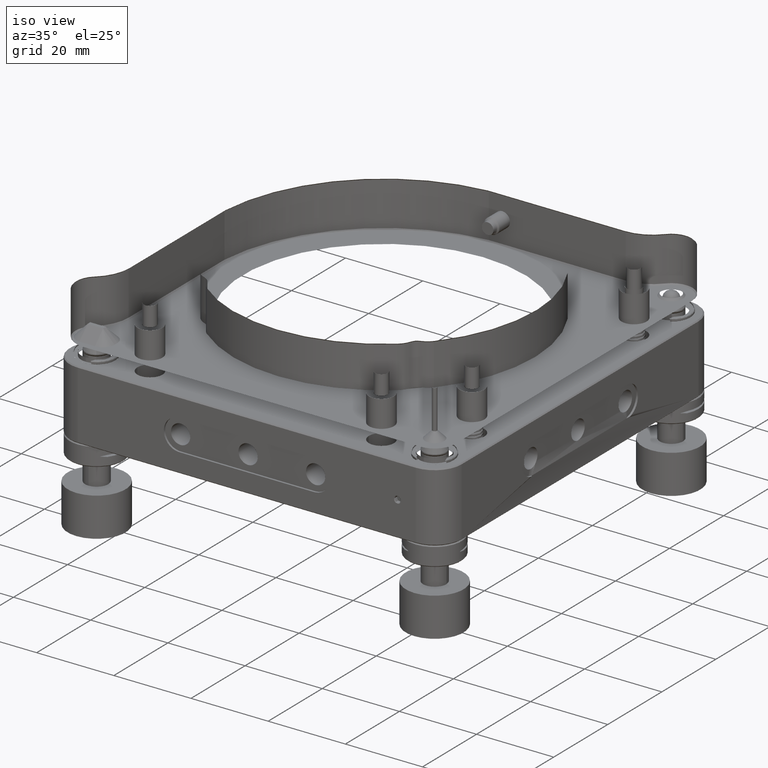
[diagram: clean part render]
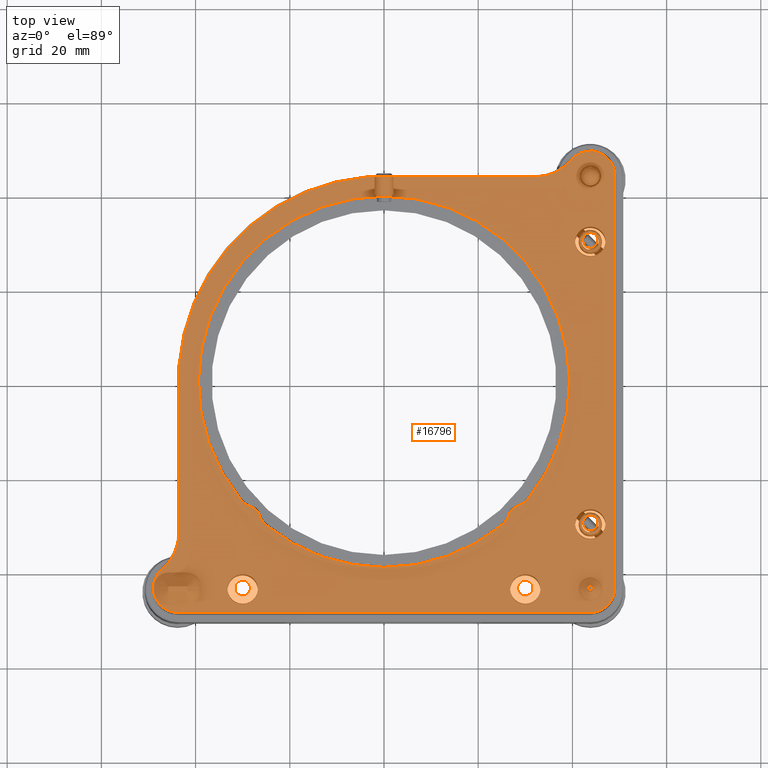
[diagram: tour spotlight — one face highlighted and labeled with its STEP entity id]
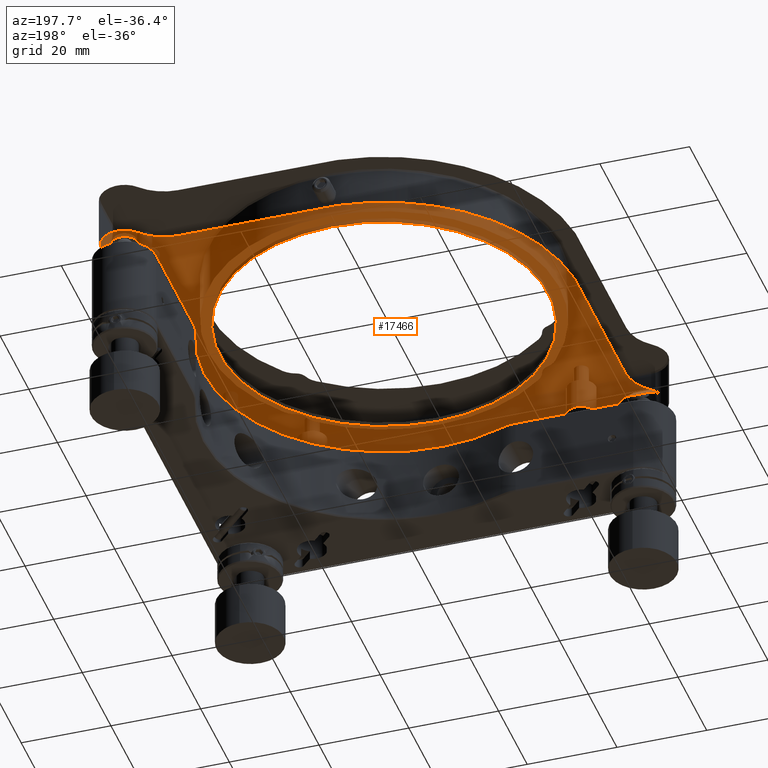
[diagram: tour spotlight — one face highlighted and labeled with its STEP entity id]
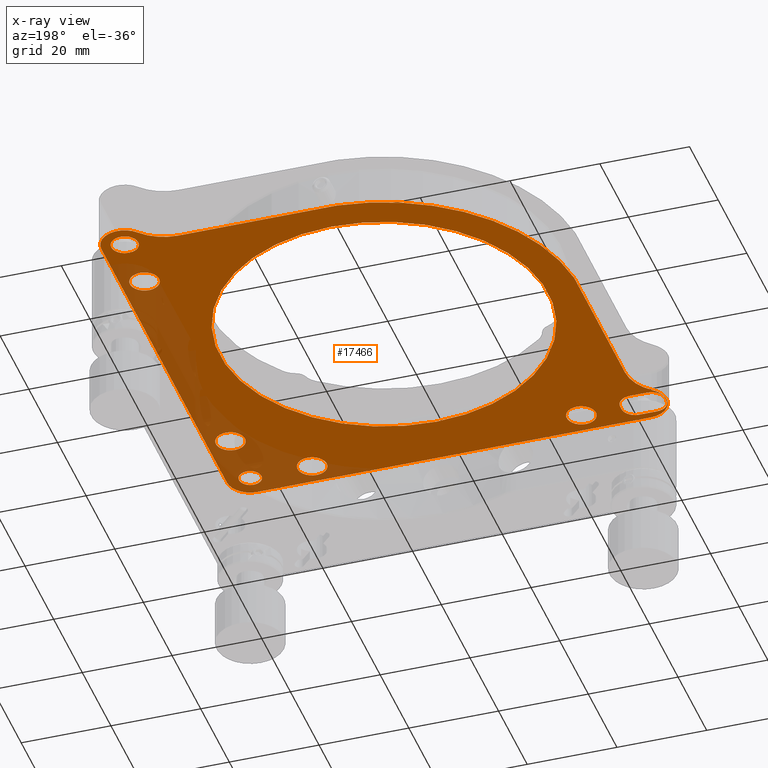
[diagram: x-ray of the same camera — body ghosted, this tour face saturated]
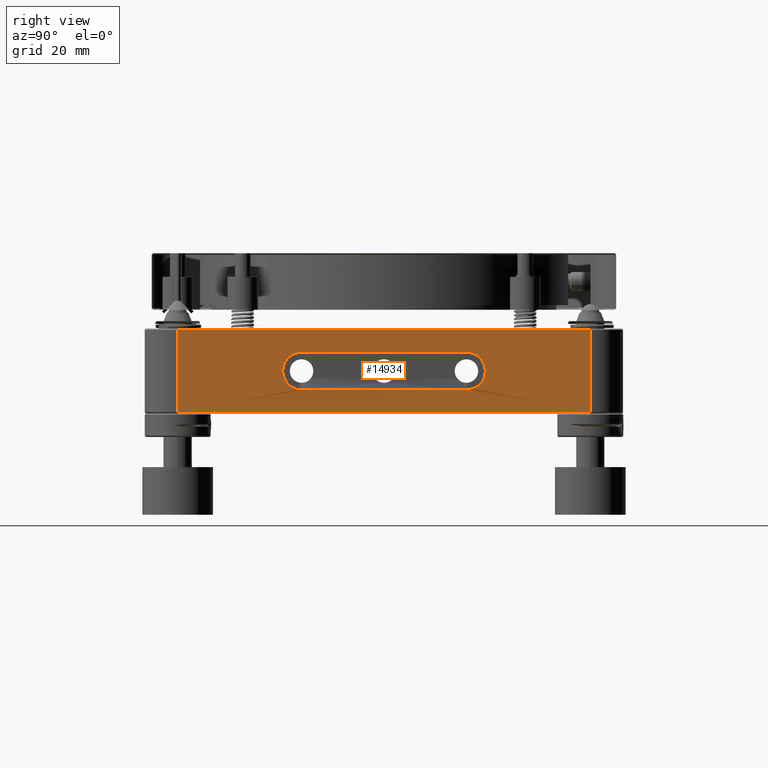
[diagram: tour spotlight — one face highlighted and labeled with its STEP entity id]
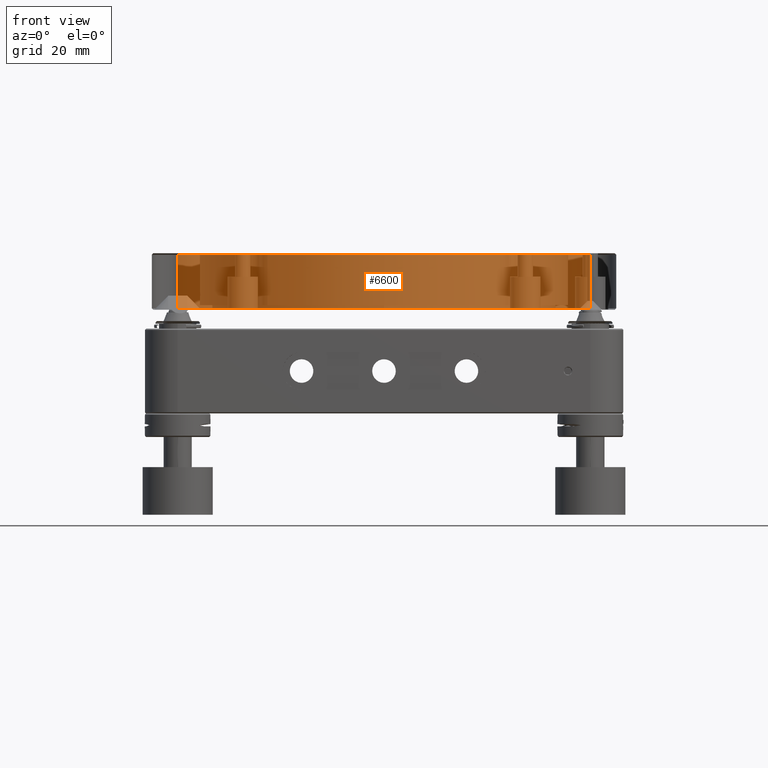
[diagram: tour spotlight — one face highlighted and labeled with its STEP entity id]
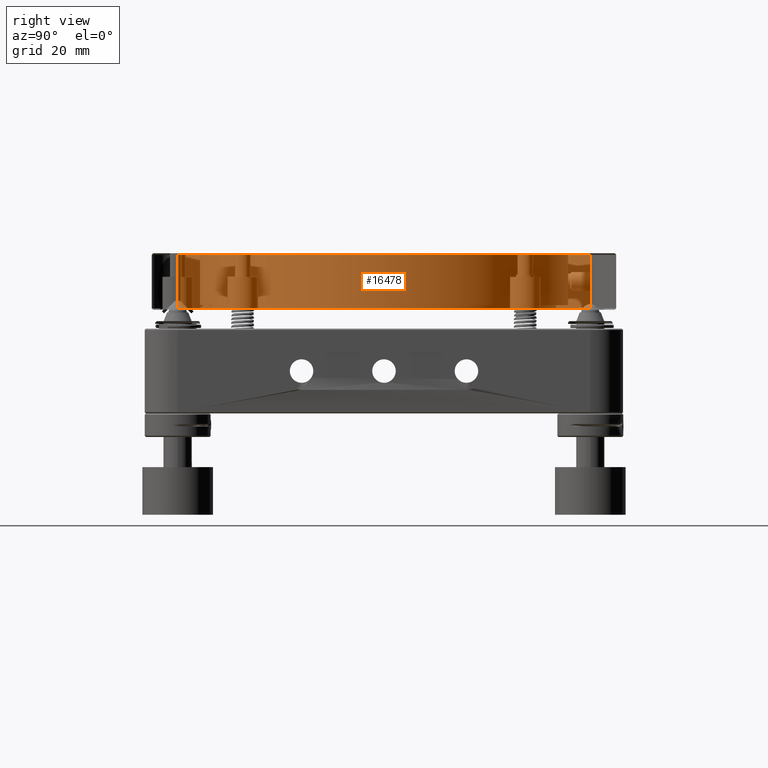
[diagram: tour spotlight — one face highlighted and labeled with its STEP entity id]
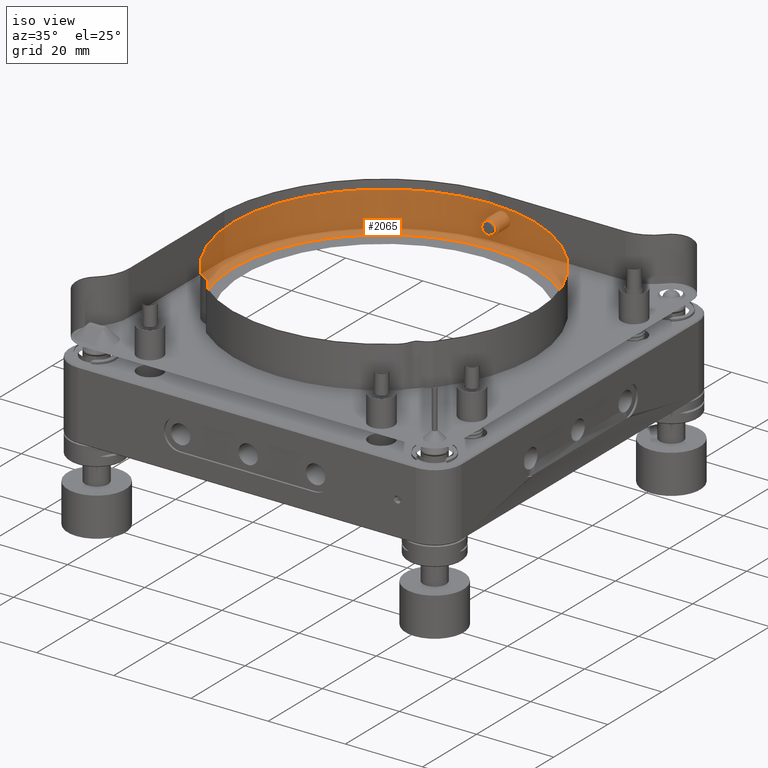
[diagram: tour spotlight — one face highlighted and labeled with its STEP entity id]
A machine part: a face-by-face anatomy tour. The part has 329 B-rep faces; the first image is the clean iso view, then the 6 largest visible faces are spotlighted one at a time (largest first), each with its STEP entity span.

Face 1 — top view, entity #16796. In plain terms, the highlighted planar face has unit normal (0, -0, 1).
Definition (entity closure, byte-faithful):
#42 = VECTOR ( 'NONE', #4861, 1000.000000000000000 ) ;
#60 = CARTESIAN_POINT ( 'NONE',  ( 21.56876422569402507, -26.41208832668139195, 24.99999999986357935 ) ) ;
#168 = CARTESIAN_POINT ( 'NONE',  ( -30.51719296394402647, -24.92109414931629274, 24.99999999998798472 ) ) ;
#392 = CARTESIAN_POINT ( 'NONE',  ( 1.524154991109268925E-14, 3.017235851815658090E-14, 24.99999999999999289 ) ) ;
#423 = AXIS2_PLACEMENT_3D ( 'NONE', #15290, #3256, #4758 ) ;
#473 = CARTESIAN_POINT ( 'NONE',  ( -47.15483870958796331, -39.82695869244008691, 25.00000000001705303 ) ) ;
#583 = AXIS2_PLACEMENT_3D ( 'NONE', #392, #4302, #7201 ) ;
#626 = CARTESIAN_POINT ( 'NONE',  ( -43.79999999999999005, -49.00000000000694200, 24.99999999999313260 ) ) ;
#671 = CARTESIAN_POINT ( 'NONE',  ( -43.79999999999999005, -43.80000000000006111, 25.00000000003410605 ) ) ;
#732 = VERTEX_POINT ( 'NONE', #1971 ) ;
#821 = CARTESIAN_POINT ( 'NONE',  ( -21.56876422569410678, -26.41208832668137774, 24.99999999987309351 ) ) ;
#920 = ORIENTED_EDGE ( 'NONE', *, *, #16459, .F. ) ;
#930 = DIRECTION ( 'NONE',  ( -1.000000000000000000, 0.000000000000000000, 0.000000000000000000 ) ) ;
#986 = AXIS2_PLACEMENT_3D ( 'NONE', #821, #13999, #7541 ) ;
#1058 = ORIENTED_EDGE ( 'NONE', *, *, #11528, .T. ) ;
#1223 = DIRECTION ( 'NONE',  ( -1.137208903880104210E-16, 1.216571513026822848E-16, -1.000000000000000000 ) ) ;
#1247 = DIRECTION ( 'NONE',  ( 2.021037059392685904E-15, -1.000000000000000000, 0.000000000000000000 ) ) ;
#1496 = ORIENTED_EDGE ( 'NONE', *, *, #17326, .T. ) ;
#1534 = CIRCLE ( 'NONE', #5189, 5.199999999912330750 ) ;
#1614 = AXIS2_PLACEMENT_3D ( 'NONE', #6150, #10396, #13051 ) ;
#1890 = CIRCLE ( 'NONE', #16877, 10.29999999998863025 ) ;
#1947 = CIRCLE ( 'NONE', #4503, 1.649999999999988365 ) ;
#1971 = CARTESIAN_POINT ( 'NONE',  ( 43.80000000000002558, -28.34999999999995168, 24.99999999999998579 ) ) ;
#1998 = DIRECTION ( 'NONE',  ( -7.895942515694935983E-17, 1.579188503138986950E-16, -1.000000000000000000 ) ) ;
#2035 = CARTESIAN_POINT ( 'NONE',  ( 43.80000000000003268, 43.79999999999991900, 24.99999999997726263 ) ) ;
#2193 = CARTESIAN_POINT ( 'NONE',  ( -30.00000000000003197, -43.80000000000006821, 24.99999999999999289 ) ) ;
#2292 = EDGE_CURVE ( 'NONE', #15299, #5456, #14198, .T. ) ;
#2391 = CARTESIAN_POINT ( 'NONE',  ( 48.99999999999042899, 43.79999999999991189, 25.00000000000801492 ) ) ;
#2513 = CARTESIAN_POINT ( 'NONE',  ( 49.00000000004650502, -43.80000000000008953, 24.99999999995349143 ) ) ;
#2544 = CARTESIAN_POINT ( 'NONE',  ( 1.524154991108814857E-14, 3.122502256758252770E-14, 24.99999999996563815 ) ) ;
#2568 = DIRECTION ( 'NONE',  ( -1.684197549493904345E-16, -1.684197549493904838E-16, -1.000000000000000000 ) ) ;
#2579 = CARTESIAN_POINT ( 'NONE',  ( 43.79999999999999716, -43.80000000000008953, 24.99999999999998579 ) ) ;
#2605 = CARTESIAN_POINT ( 'NONE',  ( 31.95728071767303646, 43.50000000000562039, 24.99999999999431921 ) ) ;
#2607 = VERTEX_POINT ( 'NONE', #12603 ) ;
#2657 = ORIENTED_EDGE ( 'NONE', *, *, #3794, .F. ) ;
#2714 = CIRCLE ( 'NONE', #3005, 5.299999999954736474 ) ;
#2792 = FACE_BOUND ( 'NONE', #14475, .T. ) ;
#2861 = DIRECTION ( 'NONE',  ( -1.137208903880104210E-16, 1.216571513026822848E-16, -1.000000000000000000 ) ) ;
#2883 = PLANE ( 'NONE',  #583 ) ;
#3005 = AXIS2_PLACEMENT_3D ( 'NONE', #8192, #16169, #7029 ) ;
#3248 = EDGE_CURVE ( 'NONE', #5274, #8747, #1534, .T. ) ;
#3256 = DIRECTION ( 'NONE',  ( -1.387778780788469496E-15, -9.629649722033658841E-31, 1.000000000000000000 ) ) ;
#3260 = DIRECTION ( 'NONE',  ( -1.137208903880104210E-16, 1.216571513026822848E-16, -1.000000000000000000 ) ) ;
#3316 = VERTEX_POINT ( 'NONE', #10386 ) ;
#3488 = CARTESIAN_POINT ( 'NONE',  ( -43.50000000000000711, -31.95728071767304357, 25.00000000000000000 ) ) ;
#3552 = EDGE_CURVE ( 'NONE', #12258, #15805, #15941, .T. ) ;
#3569 = EDGE_CURVE ( 'NONE', #3316, #3316, #7738, .T. ) ;
#3721 = DIRECTION ( 'NONE',  ( 0.000000000000000000, 0.000000000000000000, -1.000000000000000000 ) ) ;
#3726 = CARTESIAN_POINT ( 'NONE',  ( 39.82695869236763286, 47.15483870968835589, 24.99999999998295408 ) ) ;
#3794 = EDGE_CURVE ( 'NONE', #7007, #9622, #5759, .T. ) ;
#4071 = ORIENTED_EDGE ( 'NONE', *, *, #9731, .F. ) ;
#4146 = CARTESIAN_POINT ( 'NONE',  ( -26.61420246276332335, -28.03491086585103886, 24.99999999989675814 ) ) ;
#4230 = CIRCLE ( 'NONE', #14393, 1.649999999999995248 ) ;
#4302 = DIRECTION ( 'NONE',  ( 1.137208903880104210E-16, -1.216571513026822848E-16, 1.000000000000000000 ) ) ;
#4424 = CARTESIAN_POINT ( 'NONE',  ( -3.488012242629958237, 43.49999999999995737, 24.99999999999999289 ) ) ;
#4503 = AXIS2_PLACEMENT_3D ( 'NONE', #17508, #1223, #10953 ) ;
#4506 = DIRECTION ( 'NONE',  ( -1.320855438561018966E-16, 1.320855438561018966E-16, -1.000000000000000000 ) ) ;
#4655 = DIRECTION ( 'NONE',  ( 0.000000000000000000, 1.000000000000000000, 1.590044614543214634E-16 ) ) ;
#4738 = DIRECTION ( 'NONE',  ( 0.000000000000000000, 0.000000000000000000, -1.000000000000000000 ) ) ;
#4758 = DIRECTION ( 'NONE',  ( -1.000000000000000000, -4.731064025256560514E-15, -1.577021341752186772E-15 ) ) ;
#4846 = DIRECTION ( 'NONE',  ( 1.000000000000000000, 0.000000000000000000, -8.805702923740127261E-17 ) ) ;
#4861 = DIRECTION ( 'NONE',  ( -2.144694800226418681E-16, -1.000000000000000000, -2.144694800226417941E-16 ) ) ;
#4980 = CIRCLE ( 'NONE', #16576, 1.649999999999991696 ) ;
#5189 = AXIS2_PLACEMENT_3D ( 'NONE', #5225, #7789, #6642 ) ;
#5225 = CARTESIAN_POINT ( 'NONE',  ( 43.80000000000000426, -43.80000000000008953, 24.99999999992041921 ) ) ;
#5274 = VERTEX_POINT ( 'NONE', #2513 ) ;
#5402 = AXIS2_PLACEMENT_3D ( 'NONE', #60, #8111, #13509 ) ;
#5456 = VERTEX_POINT ( 'NONE', #473 ) ;
#5561 = AXIS2_PLACEMENT_3D ( 'NONE', #12961, #1998, #4655 ) ;
#5602 = ORIENTED_EDGE ( 'NONE', *, *, #12438, .F. ) ;
#5612 = VERTEX_POINT ( 'NONE', #16668 ) ;
#5621 = ORIENTED_EDGE ( 'NONE', *, *, #9091, .F. ) ;
#5666 = EDGE_CURVE ( 'NONE', #15805, #8905, #16255, .T. ) ;
#5667 = EDGE_CURVE ( 'NONE', #8747, #6864, #6305, .T. ) ;
#5706 = FACE_BOUND ( 'NONE', #13038, .T. ) ;
#5759 = CIRCLE ( 'NONE', #14225, 39.39999999996570779 ) ;
#5936 = CARTESIAN_POINT ( 'NONE',  ( 43.79999999999999716, -48.99999999995942801, 24.99999999997098854 ) ) ;
#5973 = CARTESIAN_POINT ( 'NONE',  ( 38.30000000000003979, 43.49999999999995026, 24.99999999999998934 ) ) ;
#6091 = LINE ( 'NONE', #10425, #7534 ) ;
#6150 = CARTESIAN_POINT ( 'NONE',  ( 26.41208832668145590, -21.56876422569393270, 24.99999999995690203 ) ) ;
#6282 = DIRECTION ( 'NONE',  ( -0.000000000000000000, 6.938893903884964751E-16, 1.000000000000000000 ) ) ;
#6303 = VERTEX_POINT ( 'NONE', #12674 ) ;
#6305 = LINE ( 'NONE', #12938, #10880 ) ;
#6421 = EDGE_CURVE ( 'NONE', #16168, #2607, #8056, .T. ) ;
#6443 = CIRCLE ( 'NONE', #16336, 5.199999999921336880 ) ;
#6454 = ORIENTED_EDGE ( 'NONE', *, *, #14304, .F. ) ;
#6543 = ORIENTED_EDGE ( 'NONE', *, *, #9953, .T. ) ;
#6578 = AXIS2_PLACEMENT_3D ( 'NONE', #15545, #13062, #12712 ) ;
#6584 = VERTEX_POINT ( 'NONE', #14721 ) ;
#6610 = ORIENTED_EDGE ( 'NONE', *, *, #10729, .T. ) ;
#6620 = DIRECTION ( 'NONE',  ( -1.137208903880104210E-16, 1.216571513026822848E-16, -1.000000000000000000 ) ) ;
#6642 = DIRECTION ( 'NONE',  ( 0.000000000000000000, 1.000000000000000000, 0.000000000000000000 ) ) ;
#6816 = CIRCLE ( 'NONE', #5402, 5.299999999890184554 ) ;
#6864 = VERTEX_POINT ( 'NONE', #626 ) ;
#7007 = VERTEX_POINT ( 'NONE', #168 ) ;
#7026 = FACE_OUTER_BOUND ( 'NONE', #11978, .T. ) ;
#7029 = DIRECTION ( 'NONE',  ( 0.000000000000000000, -1.000000000000000000, -6.546126324496687223E-16 ) ) ;
#7201 = DIRECTION ( 'NONE',  ( 0.000000000000000000, -1.000000000000000000, -1.216571513026822848E-16 ) ) ;
#7232 = CARTESIAN_POINT ( 'NONE',  ( 28.03491086587956005, -26.61420246290527913, 24.99999999993866240 ) ) ;
#7534 = VECTOR ( 'NONE', #15559, 1000.000000000000000 ) ;
#7541 = DIRECTION ( 'NONE',  ( 1.000000000000000000, -1.963837897346608720E-15, 0.000000000000000000 ) ) ;
#7604 = LINE ( 'NONE', #10526, #42 ) ;
#7704 = EDGE_CURVE ( 'NONE', #8523, #7007, #2714, .T. ) ;
#7738 = CIRCLE ( 'NONE', #17360, 1.649999999999991696 ) ;
#7789 = DIRECTION ( 'NONE',  ( 0.000000000000000000, -3.154042683589862302E-16, -1.000000000000000000 ) ) ;
#7945 = DIRECTION ( 'NONE',  ( 1.000000000000000000, 0.000000000000000000, -1.761140584749560280E-16 ) ) ;
#7959 = EDGE_LOOP ( 'NONE', ( #14669, #15946, #14558, #11890, #920, #14848, #5621, #2657 ) ) ;
#8056 = CIRCLE ( 'NONE', #423, 2.200000000062651839 ) ;
#8111 = DIRECTION ( 'NONE',  ( -0.000000000000000000, 6.546126324646625030E-16, -1.000000000000000000 ) ) ;
#8118 = CIRCLE ( 'NONE', #10374, 2.200000000197013250 ) ;
#8192 = CARTESIAN_POINT ( 'NONE',  ( -26.41208832668154471, -21.56876422569392560, 24.99999999998637179 ) ) ;
#8291 = AXIS2_PLACEMENT_3D ( 'NONE', #11570, #4506, #4846 ) ;
#8523 = VERTEX_POINT ( 'NONE', #9226 ) ;
#8747 = VERTEX_POINT ( 'NONE', #5936 ) ;
#8854 = ORIENTED_EDGE ( 'NONE', *, *, #2292, .F. ) ;
#8905 = VERTEX_POINT ( 'NONE', #4146 ) ;
#8935 = EDGE_CURVE ( 'NONE', #6584, #6584, #4980, .T. ) ;
#8952 = DIRECTION ( 'NONE',  ( -1.000000000000000000, 9.678045917729563846E-17, -9.678045917729560149E-17 ) ) ;
#8983 = EDGE_LOOP ( 'NONE', ( #5602 ) ) ;
#9021 = DIRECTION ( 'NONE',  ( -1.000000000000000000, 0.000000000000000000, 0.000000000000000000 ) ) ;
#9075 = ORIENTED_EDGE ( 'NONE', *, *, #3248, .T. ) ;
#9091 = EDGE_CURVE ( 'NONE', #9622, #16168, #10351, .T. ) ;
#9138 = EDGE_CURVE ( 'NONE', #9318, #9901, #12903, .T. ) ;
#9226 = CARTESIAN_POINT ( 'NONE',  ( -28.03491086590220505, -26.61420246290208169, 24.99999999999149125 ) ) ;
#9318 = VERTEX_POINT ( 'NONE', #13984 ) ;
#9387 = DIRECTION ( 'NONE',  ( -1.137208903880104210E-16, 1.216571513026822848E-16, -1.000000000000000000 ) ) ;
#9467 = VERTEX_POINT ( 'NONE', #3726 ) ;
#9570 = DIRECTION ( 'NONE',  ( 0.000000000000000000, 1.000000000000000000, 0.000000000000000000 ) ) ;
#9622 = VERTEX_POINT ( 'NONE', #10266 ) ;
#9731 = EDGE_CURVE ( 'NONE', #9467, #15777, #1890, .T. ) ;
#9819 = AXIS2_PLACEMENT_3D ( 'NONE', #2035, #3721, #9021 ) ;
#9901 = VERTEX_POINT ( 'NONE', #4424 ) ;
#9953 = EDGE_CURVE ( 'NONE', #15299, #9318, #6091, .T. ) ;
#10266 = CARTESIAN_POINT ( 'NONE',  ( 30.51719296393632419, -24.92109414931109868, 24.99999999996126121 ) ) ;
#10348 = CARTESIAN_POINT ( 'NONE',  ( -28.70853531617393273, -28.70853531617373733, 24.99999999992041921 ) ) ;
#10351 = CIRCLE ( 'NONE', #1614, 5.299999999925253391 ) ;
#10374 = AXIS2_PLACEMENT_3D ( 'NONE', #10348, #6282, #15576 ) ;
#10386 = CARTESIAN_POINT ( 'NONE',  ( -30.00000000000003197, -42.15000000000007674, 24.99999999999999289 ) ) ;
#10396 = DIRECTION ( 'NONE',  ( -3.273063162218869303E-16, 9.819189486656608895E-16, -1.000000000000000000 ) ) ;
#10425 = CARTESIAN_POINT ( 'NONE',  ( -43.50000000000000000, -38.30000000000006111, 24.99999999999998934 ) ) ;
#10526 = CARTESIAN_POINT ( 'NONE',  ( 49.00000000001343636, -49.30000000000010374, 24.99999999998656364 ) ) ;
#10729 = EDGE_CURVE ( 'NONE', #9467, #13455, #15471, .T. ) ;
#10837 = EDGE_CURVE ( 'NONE', #8905, #8523, #8118, .T. ) ;
#10880 = VECTOR ( 'NONE', #8952, 1000.000000000000000 ) ;
#10953 = DIRECTION ( 'NONE',  ( 0.000000000000000000, 1.000000000000000000, 0.000000000000000000 ) ) ;
#11102 = FACE_BOUND ( 'NONE', #16022, .T. ) ;
#11251 = DIRECTION ( 'NONE',  ( 0.000000000000000000, 1.000000000000000000, 0.000000000000000000 ) ) ;
#11370 = DIRECTION ( 'NONE',  ( 1.000000000000000000, -1.401271720408919634E-16, -1.401271720408920127E-16 ) ) ;
#11455 = LINE ( 'NONE', #5973, #16355 ) ;
#11527 = AXIS2_PLACEMENT_3D ( 'NONE', #2579, #9387, #9570 ) ;
#11528 = EDGE_CURVE ( 'NONE', #6864, #5456, #6443, .T. ) ;
#11570 = CARTESIAN_POINT ( 'NONE',  ( 1.524154991109268294E-14, 3.122502256758252770E-14, 24.99999999999998579 ) ) ;
#11890 = ORIENTED_EDGE ( 'NONE', *, *, #3552, .F. ) ;
#11910 = ORIENTED_EDGE ( 'NONE', *, *, #8935, .F. ) ;
#11978 = EDGE_LOOP ( 'NONE', ( #1496, #9075, #13323, #1058, #8854, #6543, #14409, #13236, #4071, #6610 ) ) ;
#12258 = VERTEX_POINT ( 'NONE', #12962 ) ;
#12385 = CARTESIAN_POINT ( 'NONE',  ( 31.95728071767303646, 53.79999999999993321, 24.99999999998864197 ) ) ;
#12406 = CARTESIAN_POINT ( 'NONE',  ( 43.80000000000001137, 30.00000000000004263, 24.99999999999999289 ) ) ;
#12429 = FACE_BOUND ( 'NONE', #8983, .T. ) ;
#12438 = EDGE_CURVE ( 'NONE', #5612, #5612, #17230, .T. ) ;
#12603 = CARTESIAN_POINT ( 'NONE',  ( 26.61420246296219361, -28.03491086590792136, 24.99999999994884448 ) ) ;
#12674 = CARTESIAN_POINT ( 'NONE',  ( 43.80000000000001137, 31.65000000000003766, 24.99999999999999289 ) ) ;
#12712 = DIRECTION ( 'NONE',  ( 1.000000000000000000, 0.000000000000000000, 0.000000000000000000 ) ) ;
#12811 = EDGE_CURVE ( 'NONE', #9901, #15777, #11455, .T. ) ;
#12903 = CIRCLE ( 'NONE', #5561, 43.63961765878262611 ) ;
#12938 = CARTESIAN_POINT ( 'NONE',  ( -49.29999999999999005, -48.99999999999106848, 25.00000000000899902 ) ) ;
#12961 = CARTESIAN_POINT ( 'NONE',  ( 1.523112147152336950E-14, 3.117764691248835941E-14, 24.99999999999997513 ) ) ;
#12962 = CARTESIAN_POINT ( 'NONE',  ( 24.92109414926889244, -30.51719296389660840, 24.99999999990381383 ) ) ;
#13038 = EDGE_LOOP ( 'NONE', ( #17388 ) ) ;
#13051 = DIRECTION ( 'NONE',  ( 0.000000000000000000, -1.000000000000000000, -6.546126324533102029E-16 ) ) ;
#13062 = DIRECTION ( 'NONE',  ( -0.000000000000000000, 0.000000000000000000, -1.000000000000000000 ) ) ;
#13236 = ORIENTED_EDGE ( 'NONE', *, *, #12811, .T. ) ;
#13323 = ORIENTED_EDGE ( 'NONE', *, *, #5667, .T. ) ;
#13426 = CARTESIAN_POINT ( 'NONE',  ( 29.99999999999995026, -43.80000000000008242, 24.99999999999998579 ) ) ;
#13455 = VERTEX_POINT ( 'NONE', #2391 ) ;
#13509 = DIRECTION ( 'NONE',  ( -1.963837897372925120E-15, -1.000000000000000000, -6.546126324576416409E-16 ) ) ;
#13586 = FACE_BOUND ( 'NONE', #7959, .T. ) ;
#13669 = EDGE_CURVE ( 'NONE', #732, #732, #1947, .T. ) ;
#13984 = CARTESIAN_POINT ( 'NONE',  ( -43.50000000000000000, 3.488012242629273896, 24.99999999999998579 ) ) ;
#13999 = DIRECTION ( 'NONE',  ( -0.000000000000000000, 0.000000000000000000, -1.000000000000000000 ) ) ;
#14198 = CIRCLE ( 'NONE', #6578, 10.29999999999999716 ) ;
#14225 = AXIS2_PLACEMENT_3D ( 'NONE', #2544, #17155, #7945 ) ;
#14304 = EDGE_CURVE ( 'NONE', #6303, #6303, #4230, .T. ) ;
#14393 = AXIS2_PLACEMENT_3D ( 'NONE', #12406, #2861, #11251 ) ;
#14409 = ORIENTED_EDGE ( 'NONE', *, *, #9138, .T. ) ;
#14475 = EDGE_LOOP ( 'NONE', ( #11910 ) ) ;
#14558 = ORIENTED_EDGE ( 'NONE', *, *, #5666, .F. ) ;
#14669 = ORIENTED_EDGE ( 'NONE', *, *, #7704, .F. ) ;
#14695 = EDGE_LOOP ( 'NONE', ( #6454 ) ) ;
#14721 = CARTESIAN_POINT ( 'NONE',  ( 29.99999999999995026, -42.15000000000009095, 24.99999999999998579 ) ) ;
#14822 = CARTESIAN_POINT ( 'NONE',  ( -24.92109414937774403, -30.51719296398218972, 24.99999999992667910 ) ) ;
#14848 = ORIENTED_EDGE ( 'NONE', *, *, #6421, .F. ) ;
#15290 = CARTESIAN_POINT ( 'NONE',  ( 28.70853531617384391, -28.70853531617379417, 24.99999999997726619 ) ) ;
#15299 = VERTEX_POINT ( 'NONE', #3488 ) ;
#15335 = ORIENTED_EDGE ( 'NONE', *, *, #13669, .F. ) ;
#15471 = CIRCLE ( 'NONE', #9819, 5.200000000026045122 ) ;
#15545 = CARTESIAN_POINT ( 'NONE',  ( -53.79999999999999716, -31.95728071767304357, 25.00000000000000000 ) ) ;
#15559 = DIRECTION ( 'NONE',  ( 2.243815119554557040E-17, 1.000000000000000000, -2.243815119554557657E-17 ) ) ;
#15576 = DIRECTION ( 'NONE',  ( -1.577021341655872772E-15, 1.000000000000000000, 0.000000000000000000 ) ) ;
#15777 = VERTEX_POINT ( 'NONE', #2605 ) ;
#15805 = VERTEX_POINT ( 'NONE', #14822 ) ;
#15941 = CIRCLE ( 'NONE', #8291, 39.40000000000004832 ) ;
#15946 = ORIENTED_EDGE ( 'NONE', *, *, #10837, .F. ) ;
#16022 = EDGE_LOOP ( 'NONE', ( #15335 ) ) ;
#16168 = VERTEX_POINT ( 'NONE', #7232 ) ;
#16169 = DIRECTION ( 'NONE',  ( -3.273063162218865852E-16, 9.819189486656593118E-16, -1.000000000000000000 ) ) ;
#16255 = CIRCLE ( 'NONE', #986, 5.299999999961206854 ) ;
#16336 = AXIS2_PLACEMENT_3D ( 'NONE', #671, #4738, #930 ) ;
#16355 = VECTOR ( 'NONE', #11370, 1000.000000000000000 ) ;
#16422 = FACE_BOUND ( 'NONE', #14695, .T. ) ;
#16459 = EDGE_CURVE ( 'NONE', #2607, #12258, #6816, .T. ) ;
#16576 = AXIS2_PLACEMENT_3D ( 'NONE', #13426, #6620, #17421 ) ;
#16631 = DIRECTION ( 'NONE',  ( 0.000000000000000000, 1.000000000000000000, 0.000000000000000000 ) ) ;
#16668 = CARTESIAN_POINT ( 'NONE',  ( 43.79999999999999716, -43.20000000000008811, 24.99999999999998579 ) ) ;
#16796 = ADVANCED_FACE ( 'NONE', ( #13586, #7026, #16422, #12429, #2792, #5706, #11102 ), #2883, .F. ) ;
#16877 = AXIS2_PLACEMENT_3D ( 'NONE', #12385, #2568, #1247 ) ;
#17155 = DIRECTION ( 'NONE',  ( -1.761140584749560526E-16, 1.320855438562170210E-16, -1.000000000000000000 ) ) ;
#17230 = CIRCLE ( 'NONE', #11527, 0.6000000000000033085 ) ;
#17326 = EDGE_CURVE ( 'NONE', #13455, #5274, #7604, .T. ) ;
#17360 = AXIS2_PLACEMENT_3D ( 'NONE', #2193, #3260, #16631 ) ;
#17388 = ORIENTED_EDGE ( 'NONE', *, *, #3569, .F. ) ;
#17421 = DIRECTION ( 'NONE',  ( 0.000000000000000000, 1.000000000000000000, 0.000000000000000000 ) ) ;
#17508 = CARTESIAN_POINT ( 'NONE',  ( 43.80000000000002558, -29.99999999999993960, 24.99999999999998579 ) ) ;

Face 2 — auxiliary view, entity #17466. An x-ray twin of the same camera follows (body ghosted, this face saturated) — the face is partly hidden behind the body. In plain terms, the highlighted planar face has unit normal (0, -0, 1).
Definition (entity closure, byte-faithful):
#79 = FACE_OUTER_BOUND ( 'NONE', #1812, .T. ) ;
#165 = CIRCLE ( 'NONE', #8357, 5.200000000026003377 ) ;
#169 = PLANE ( 'NONE',  #9354 ) ;
#170 = ORIENTED_EDGE ( 'NONE', *, *, #15264, .T. ) ;
#181 = ORIENTED_EDGE ( 'NONE', *, *, #3183, .T. ) ;
#323 = EDGE_CURVE ( 'NONE', #17320, #12768, #1991, .T. ) ;
#408 = VECTOR ( 'NONE', #5697, 1000.000000000000000 ) ;
#523 = CIRCLE ( 'NONE', #7874, 3.250000000000002665 ) ;
#693 = DIRECTION ( 'NONE',  ( -1.000000000000000000, -1.383495956820993113E-32, 1.137208903880104210E-16 ) ) ;
#820 = CARTESIAN_POINT ( 'NONE',  ( 40.80000000001410143, 43.79999999999991189, 13.00000000011442047 ) ) ;
#825 = AXIS2_PLACEMENT_3D ( 'NONE', #14736, #12082, #17490 ) ;
#936 = EDGE_LOOP ( 'NONE', ( #16313 ) ) ;
#970 = VERTEX_POINT ( 'NONE', #15277 ) ;
#975 = CIRCLE ( 'NONE', #10864, 2.499999999940889950 ) ;
#978 = CARTESIAN_POINT ( 'NONE',  ( 1.387689922643660611E-14, -47.30000000004009308, 12.99999999999999112 ) ) ;
#1002 = DIRECTION ( 'NONE',  ( -1.000000000000000000, 0.000000000000000000, 0.000000000000000000 ) ) ;
#1065 = ORIENTED_EDGE ( 'NONE', *, *, #5747, .T. ) ;
#1246 = CIRCLE ( 'NONE', #6899, 2.999999999952443375 ) ;
#1321 = CARTESIAN_POINT ( 'NONE',  ( 1.387689922643660611E-14, 3.163224433378877729E-14, 12.99999999999999645 ) ) ;
#1377 = DIRECTION ( 'NONE',  ( 0.000000000000000000, -1.000000000000000000, -1.421904488505579408E-16 ) ) ;
#1415 = DIRECTION ( 'NONE',  ( 0.000000000000000000, 1.000000000000000000, 1.684197549495670160E-16 ) ) ;
#1531 = LINE ( 'NONE', #6023, #3017 ) ;
#1571 = DIRECTION ( 'NONE',  ( 0.000000000000000000, 1.000000000000000000, 0.000000000000000000 ) ) ;
#1599 = CARTESIAN_POINT ( 'NONE',  ( -47.15483870968606084, -39.82695869235479336, 12.99999999998441425 ) ) ;
#1812 = EDGE_LOOP ( 'NONE', ( #9270, #13263, #1065, #9682, #12977, #11643, #3883, #6818, #15601, #16212 ) ) ;
#1843 = CARTESIAN_POINT ( 'NONE',  ( 31.95728071767303646, 53.79999999999994031, 13.00000000000000533 ) ) ;
#1928 = DIRECTION ( 'NONE',  ( -8.420987747478344639E-17, 1.684197549495669914E-16, -1.000000000000000000 ) ) ;
#1955 = DIRECTION ( 'NONE',  ( 0.000000000000000000, 1.000000000000000000, 0.000000000000000000 ) ) ;
#1991 = LINE ( 'NONE', #7384, #12817 ) ;
#2069 = DIRECTION ( 'NONE',  ( 0.000000000000000000, 0.000000000000000000, -1.000000000000000000 ) ) ;
#2072 = CARTESIAN_POINT ( 'NONE',  ( 43.80000000000000426, -26.74999999999998224, 12.99999999999998757 ) ) ;
#2102 = CARTESIAN_POINT ( 'NONE',  ( 1.387689922643660611E-14, 43.49999999999992895, 13.00000000000000178 ) ) ;
#2346 = DIRECTION ( 'NONE',  ( 3.469446952081348519E-16, 0.000000000000000000, -1.000000000000000000 ) ) ;
#2493 = CIRCLE ( 'NONE', #7901, 5.200000000034981973 ) ;
#2504 = EDGE_CURVE ( 'NONE', #7644, #7644, #3483, .T. ) ;
#2533 = ORIENTED_EDGE ( 'NONE', *, *, #3836, .T. ) ;
#2569 = VERTEX_POINT ( 'NONE', #13925 ) ;
#2615 = CARTESIAN_POINT ( 'NONE',  ( 43.80000000000000426, -29.99999999999998224, 12.99999999999998757 ) ) ;
#2622 = CARTESIAN_POINT ( 'NONE',  ( -43.49999999999997158, 3.488012242628671711, 12.99999999999997158 ) ) ;
#2630 = CARTESIAN_POINT ( 'NONE',  ( -38.80000000001290772, -43.30000000000008242, 13.00000000000595080 ) ) ;
#3017 = VECTOR ( 'NONE', #16744, 1000.000000000000000 ) ;
#3183 = EDGE_CURVE ( 'NONE', #4900, #4900, #15632, .T. ) ;
#3195 = EDGE_LOOP ( 'NONE', ( #15652 ) ) ;
#3424 = DIRECTION ( 'NONE',  ( 0.000000000000000000, -1.000000000000000000, -1.216571513026822848E-16 ) ) ;
#3483 = CIRCLE ( 'NONE', #16763, 3.249999999999999556 ) ;
#3579 = VERTEX_POINT ( 'NONE', #12779 ) ;
#3722 = LINE ( 'NONE', #978, #7309 ) ;
#3836 = EDGE_CURVE ( 'NONE', #970, #13667, #1246, .T. ) ;
#3883 = ORIENTED_EDGE ( 'NONE', *, *, #8657, .T. ) ;
#4070 = FACE_BOUND ( 'NONE', #3195, .T. ) ;
#4099 = CARTESIAN_POINT ( 'NONE',  ( -30.00000000000003197, -43.80000000000006821, 12.99999999999999467 ) ) ;
#4121 = EDGE_CURVE ( 'NONE', #3579, #3579, #975, .T. ) ;
#4214 = CARTESIAN_POINT ( 'NONE',  ( 48.99999999999471356, -43.80000000000008953, 12.99999999999050004 ) ) ;
#4527 = DIRECTION ( 'NONE',  ( -1.000000000000000000, 0.000000000000000000, 0.000000000000000000 ) ) ;
#4688 = VERTEX_POINT ( 'NONE', #15749 ) ;
#4740 = LINE ( 'NONE', #14462, #13467 ) ;
#4749 = CARTESIAN_POINT ( 'NONE',  ( -43.49999999999997158, 3.163224433378877729E-14, 13.00000000000000178 ) ) ;
#4804 = CIRCLE ( 'NONE', #15535, 3.000000000009286794 ) ;
#4900 = VERTEX_POINT ( 'NONE', #8966 ) ;
#4903 = DIRECTION ( 'NONE',  ( -2.243815119554527150E-17, -1.000000000000000000, 2.243815119554535470E-17 ) ) ;
#4940 = VERTEX_POINT ( 'NONE', #16715 ) ;
#4949 = CARTESIAN_POINT ( 'NONE',  ( 29.99999999999995026, -43.80000000000008242, 12.99999999999998757 ) ) ;
#4974 = CARTESIAN_POINT ( 'NONE',  ( -45.79999999999999005, -44.30000000000007532, 12.99999999997680789 ) ) ;
#5000 = CARTESIAN_POINT ( 'NONE',  ( -41.79999999999999005, -47.30000000005510685, 12.99999999995497824 ) ) ;
#5022 = CARTESIAN_POINT ( 'NONE',  ( -41.79999999999999005, -43.30000000000008242, 13.00000000003365130 ) ) ;
#5037 = CARTESIAN_POINT ( 'NONE',  ( -48.80000000005650662, -43.30000000000008242, 12.99999999997680789 ) ) ;
#5080 = CARTESIAN_POINT ( 'NONE',  ( 43.80000000000001847, 33.24999999999997868, 12.99999999999999467 ) ) ;
#5131 = DIRECTION ( 'NONE',  ( -1.137208903880104210E-16, 1.216571513026822848E-16, -1.000000000000000000 ) ) ;
#5483 = FACE_BOUND ( 'NONE', #11217, .T. ) ;
#5515 = CIRCLE ( 'NONE', #7766, 43.63961765878252663 ) ;
#5548 = EDGE_CURVE ( 'NONE', #4688, #13667, #9762, .T. ) ;
#5609 = ORIENTED_EDGE ( 'NONE', *, *, #13519, .T. ) ;
#5697 = DIRECTION ( 'NONE',  ( 1.440953024982275748E-16, 1.000000000000000000, 1.440953024982280678E-16 ) ) ;
#5747 = EDGE_CURVE ( 'NONE', #2569, #16385, #5515, .T. ) ;
#5934 = CARTESIAN_POINT ( 'NONE',  ( 43.80000000000000426, 43.79999999999991189, 13.00000000011442047 ) ) ;
#6023 = CARTESIAN_POINT ( 'NONE',  ( 1.387689922643660611E-14, -48.99999999998632916, 12.99999999999999112 ) ) ;
#6115 = EDGE_LOOP ( 'NONE', ( #181 ) ) ;
#6137 = DIRECTION ( 'NONE',  ( -1.000000000000000000, 0.000000000000000000, 0.000000000000000000 ) ) ;
#6418 = DIRECTION ( 'NONE',  ( -1.000000000000000000, 0.000000000000000000, -6.938893904071291724E-16 ) ) ;
#6488 = EDGE_CURVE ( 'NONE', #7202, #2569, #7234, .T. ) ;
#6510 = CIRCLE ( 'NONE', #8487, 36.60000000000000142 ) ;
#6571 = DIRECTION ( 'NONE',  ( -1.137208903880104210E-16, 1.216571513026822848E-16, -1.000000000000000000 ) ) ;
#6665 = EDGE_CURVE ( 'NONE', #9711, #15063, #165, .T. ) ;
#6748 = DIRECTION ( 'NONE',  ( 0.000000000000000000, 1.000000000000000000, 0.000000000000000000 ) ) ;
#6818 = ORIENTED_EDGE ( 'NONE', *, *, #13946, .T. ) ;
#6846 = CARTESIAN_POINT ( 'NONE',  ( -30.00000000000003197, -40.55000000000006821, 12.99999999999999467 ) ) ;
#6890 = FACE_BOUND ( 'NONE', #7416, .T. ) ;
#6899 = AXIS2_PLACEMENT_3D ( 'NONE', #5022, #15822, #1571 ) ;
#6921 = EDGE_CURVE ( 'NONE', #9237, #9237, #14570, .T. ) ;
#6994 = AXIS2_PLACEMENT_3D ( 'NONE', #10663, #1928, #1415 ) ;
#7202 = VERTEX_POINT ( 'NONE', #16444 ) ;
#7234 = LINE ( 'NONE', #2102, #9469 ) ;
#7309 = VECTOR ( 'NONE', #8934, 1000.000000000000000 ) ;
#7321 = EDGE_LOOP ( 'NONE', ( #13505 ) ) ;
#7364 = EDGE_CURVE ( 'NONE', #16385, #13498, #8810, .T. ) ;
#7384 = CARTESIAN_POINT ( 'NONE',  ( -48.80000000001342642, -43.30000000000008242, 12.99999999998655653 ) ) ;
#7416 = EDGE_LOOP ( 'NONE', ( #7689 ) ) ;
#7450 = CARTESIAN_POINT ( 'NONE',  ( 1.387689922643660611E-14, -36.59999999999996589, 12.99999999999999112 ) ) ;
#7644 = VERTEX_POINT ( 'NONE', #2072 ) ;
#7689 = ORIENTED_EDGE ( 'NONE', *, *, #15797, .T. ) ;
#7766 = AXIS2_PLACEMENT_3D ( 'NONE', #14260, #15597, #11522 ) ;
#7874 = AXIS2_PLACEMENT_3D ( 'NONE', #4099, #6571, #6748 ) ;
#7901 = AXIS2_PLACEMENT_3D ( 'NONE', #16788, #14025, #8374 ) ;
#8003 = EDGE_CURVE ( 'NONE', #17320, #4940, #13738, .T. ) ;
#8006 = AXIS2_PLACEMENT_3D ( 'NONE', #4949, #5131, #15748 ) ;
#8036 = VERTEX_POINT ( 'NONE', #13552 ) ;
#8043 = FACE_BOUND ( 'NONE', #13520, .T. ) ;
#8357 = AXIS2_PLACEMENT_3D ( 'NONE', #16781, #16607, #15444 ) ;
#8374 = DIRECTION ( 'NONE',  ( 1.000000000000000000, 0.000000000000000000, -3.336006684548340502E-16 ) ) ;
#8487 = AXIS2_PLACEMENT_3D ( 'NONE', #13495, #16162, #1377 ) ;
#8620 = FACE_BOUND ( 'NONE', #6115, .T. ) ;
#8657 = EDGE_CURVE ( 'NONE', #15063, #16573, #1531, .T. ) ;
#8680 = AXIS2_PLACEMENT_3D ( 'NONE', #1843, #11052, #12543 ) ;
#8718 = CIRCLE ( 'NONE', #12966, 2.999999999985902832 ) ;
#8777 = VERTEX_POINT ( 'NONE', #820 ) ;
#8810 = LINE ( 'NONE', #4749, #9760 ) ;
#8934 = DIRECTION ( 'NONE',  ( -1.000000000000000000, -1.383495956820993113E-32, 1.137208903880104210E-16 ) ) ;
#8966 = CARTESIAN_POINT ( 'NONE',  ( 29.99999999999995026, -40.55000000000008242, 12.99999999999998757 ) ) ;
#9067 = EDGE_CURVE ( 'NONE', #4940, #970, #4740, .T. ) ;
#9071 = VERTEX_POINT ( 'NONE', #5000 ) ;
#9237 = VERTEX_POINT ( 'NONE', #5080 ) ;
#9270 = ORIENTED_EDGE ( 'NONE', *, *, #10948, .T. ) ;
#9340 = CARTESIAN_POINT ( 'NONE',  ( -45.79999999999999005, -47.29999999997743032, 12.99999999997680789 ) ) ;
#9354 = AXIS2_PLACEMENT_3D ( 'NONE', #1321, #12111, #14949 ) ;
#9469 = VECTOR ( 'NONE', #693, 1000.000000000000000 ) ;
#9628 = FACE_BOUND ( 'NONE', #7321, .T. ) ;
#9682 = ORIENTED_EDGE ( 'NONE', *, *, #7364, .T. ) ;
#9711 = VERTEX_POINT ( 'NONE', #1599 ) ;
#9760 = VECTOR ( 'NONE', #3424, 1000.000000000000000 ) ;
#9762 = LINE ( 'NONE', #9932, #408 ) ;
#9932 = CARTESIAN_POINT ( 'NONE',  ( -38.79999999997826166, -43.30000000000008242, 12.99999999997825206 ) ) ;
#10203 = LINE ( 'NONE', #13037, #17247 ) ;
#10262 = CARTESIAN_POINT ( 'NONE',  ( 43.80000000000001847, 29.99999999999998224, 12.99999999999999467 ) ) ;
#10280 = VERTEX_POINT ( 'NONE', #7450 ) ;
#10291 = CARTESIAN_POINT ( 'NONE',  ( -41.79999999999999005, -44.30000000000007532, 12.99999999991996447 ) ) ;
#10371 = DIRECTION ( 'NONE',  ( 0.000000000000000000, 0.000000000000000000, -1.000000000000000000 ) ) ;
#10476 = ORIENTED_EDGE ( 'NONE', *, *, #5548, .F. ) ;
#10663 = CARTESIAN_POINT ( 'NONE',  ( -53.79999999999999716, -31.95728071767303646, 13.00000000002215828 ) ) ;
#10807 = DIRECTION ( 'NONE',  ( 0.000000000000000000, 0.000000000000000000, -1.000000000000000000 ) ) ;
#10864 = AXIS2_PLACEMENT_3D ( 'NONE', #14461, #2346, #6418 ) ;
#10908 = ORIENTED_EDGE ( 'NONE', *, *, #12873, .T. ) ;
#10912 = AXIS2_PLACEMENT_3D ( 'NONE', #13039, #10807, #14450 ) ;
#10948 = EDGE_CURVE ( 'NONE', #14496, #7202, #14049, .T. ) ;
#10998 = EDGE_CURVE ( 'NONE', #13498, #9711, #14621, .T. ) ;
#11052 = DIRECTION ( 'NONE',  ( 0.000000000000000000, 3.368395098984092661E-16, -1.000000000000000000 ) ) ;
#11187 = CARTESIAN_POINT ( 'NONE',  ( -43.79999999999999005, -48.99999999998331646, 12.99999999998668621 ) ) ;
#11217 = EDGE_LOOP ( 'NONE', ( #16592 ) ) ;
#11262 = VERTEX_POINT ( 'NONE', #6846 ) ;
#11338 = CARTESIAN_POINT ( 'NONE',  ( 39.82695869230263952, 47.15483870974320979, 13.00000000010209256 ) ) ;
#11522 = DIRECTION ( 'NONE',  ( 1.000000000000000000, 0.000000000000000000, -1.192533460907413626E-16 ) ) ;
#11643 = ORIENTED_EDGE ( 'NONE', *, *, #6665, .T. ) ;
#11710 = DIRECTION ( 'NONE',  ( -0.000000000000000000, 1.000000000000000000, 1.216571513026822848E-16 ) ) ;
#12019 = ORIENTED_EDGE ( 'NONE', *, *, #323, .F. ) ;
#12082 = DIRECTION ( 'NONE',  ( 0.000000000000000000, 0.000000000000000000, 1.000000000000000000 ) ) ;
#12111 = DIRECTION ( 'NONE',  ( 1.137208903880104210E-16, -1.216571513026822848E-16, 1.000000000000000000 ) ) ;
#12222 = EDGE_CURVE ( 'NONE', #8036, #14496, #2493, .T. ) ;
#12404 = CIRCLE ( 'NONE', #825, 5.199999999978173193 ) ;
#12543 = DIRECTION ( 'NONE',  ( 0.000000000000000000, 1.000000000000000000, 3.368395098984092168E-16 ) ) ;
#12663 = CIRCLE ( 'NONE', #12955, 2.999999999914695792 ) ;
#12768 = VERTEX_POINT ( 'NONE', #14111 ) ;
#12779 = CARTESIAN_POINT ( 'NONE',  ( 41.30000000005911431, -43.80000000000008953, 12.99999999994388311 ) ) ;
#12817 = VECTOR ( 'NONE', #4903, 1000.000000000000000 ) ;
#12873 = EDGE_CURVE ( 'NONE', #14900, #12768, #12663, .T. ) ;
#12909 = EDGE_CURVE ( 'NONE', #11262, #11262, #523, .T. ) ;
#12955 = AXIS2_PLACEMENT_3D ( 'NONE', #4974, #10371, #1002 ) ;
#12966 = AXIS2_PLACEMENT_3D ( 'NONE', #5934, #15227, #4527 ) ;
#12977 = ORIENTED_EDGE ( 'NONE', *, *, #10998, .T. ) ;
#13037 = CARTESIAN_POINT ( 'NONE',  ( 49.00000000001681855, 3.163224433378877729E-14, 12.99999999999999112 ) ) ;
#13039 = CARTESIAN_POINT ( 'NONE',  ( -45.79999999999999005, -43.30000000000008242, 12.99999999997680789 ) ) ;
#13215 = ORIENTED_EDGE ( 'NONE', *, *, #9067, .T. ) ;
#13263 = ORIENTED_EDGE ( 'NONE', *, *, #6488, .T. ) ;
#13318 = EDGE_CURVE ( 'NONE', #8777, #8777, #8718, .T. ) ;
#13467 = VECTOR ( 'NONE', #17132, 1000.000000000000000 ) ;
#13495 = CARTESIAN_POINT ( 'NONE',  ( 1.387689922643660611E-14, 3.163224433378877729E-14, 12.99999999999999645 ) ) ;
#13498 = VERTEX_POINT ( 'NONE', #15937 ) ;
#13505 = ORIENTED_EDGE ( 'NONE', *, *, #4121, .T. ) ;
#13519 = EDGE_CURVE ( 'NONE', #9071, #14900, #3722, .T. ) ;
#13520 = EDGE_LOOP ( 'NONE', ( #12019, #14759, #13215, #2533, #10476, #170, #5609, #10908 ) ) ;
#13552 = CARTESIAN_POINT ( 'NONE',  ( 48.99999999999980815, 43.79999999999991189, 13.00000000011050361 ) ) ;
#13655 = EDGE_LOOP ( 'NONE', ( #15233 ) ) ;
#13667 = VERTEX_POINT ( 'NONE', #2630 ) ;
#13738 = CIRCLE ( 'NONE', #10912, 3.000000000085226048 ) ;
#13925 = CARTESIAN_POINT ( 'NONE',  ( -3.488012242629372039, 43.49999999999993605, 12.99999999999993783 ) ) ;
#13946 = EDGE_CURVE ( 'NONE', #16573, #13953, #12404, .T. ) ;
#13953 = VERTEX_POINT ( 'NONE', #4214 ) ;
#14013 = FACE_BOUND ( 'NONE', #936, .T. ) ;
#14025 = DIRECTION ( 'NONE',  ( 3.154042683649912859E-16, -0.000000000000000000, 1.000000000000000000 ) ) ;
#14049 = CIRCLE ( 'NONE', #8680, 10.29999999999999716 ) ;
#14111 = CARTESIAN_POINT ( 'NONE',  ( -48.79999999996405791, -44.30000000000007532, 12.99999999998168221 ) ) ;
#14157 = DIRECTION ( 'NONE',  ( -1.137208903880104210E-16, 1.216571513026822848E-16, -1.000000000000000000 ) ) ;
#14260 = CARTESIAN_POINT ( 'NONE',  ( 1.387548375223237432E-14, 3.473000126085677599E-14, 12.99999999999993427 ) ) ;
#14450 = DIRECTION ( 'NONE',  ( -1.000000000000000000, 0.000000000000000000, 0.000000000000000000 ) ) ;
#14461 = CARTESIAN_POINT ( 'NONE',  ( 43.80000000000000426, -43.80000000000008953, 12.99999999994388489 ) ) ;
#14462 = CARTESIAN_POINT ( 'NONE',  ( 1.387689922643660611E-14, -40.29999999998848637, 12.99999999999999112 ) ) ;
#14496 = VERTEX_POINT ( 'NONE', #11338 ) ;
#14570 = CIRCLE ( 'NONE', #15420, 3.249999999999999556 ) ;
#14621 = CIRCLE ( 'NONE', #6994, 10.29999999997783355 ) ;
#14654 = DIRECTION ( 'NONE',  ( -1.137208903880104210E-16, 1.216571513026822848E-16, -1.000000000000000000 ) ) ;
#14736 = CARTESIAN_POINT ( 'NONE',  ( 43.79999999999999716, -43.80000000000008953, 12.99999999997680789 ) ) ;
#14759 = ORIENTED_EDGE ( 'NONE', *, *, #8003, .T. ) ;
#14832 = DIRECTION ( 'NONE',  ( 0.000000000000000000, 1.000000000000000000, 0.000000000000000000 ) ) ;
#14900 = VERTEX_POINT ( 'NONE', #9340 ) ;
#14949 = DIRECTION ( 'NONE',  ( 0.000000000000000000, -1.000000000000000000, -1.216571513026822848E-16 ) ) ;
#15029 = FACE_BOUND ( 'NONE', #13655, .T. ) ;
#15063 = VERTEX_POINT ( 'NONE', #11187 ) ;
#15227 = DIRECTION ( 'NONE',  ( 0.000000000000000000, 0.000000000000000000, -1.000000000000000000 ) ) ;
#15233 = ORIENTED_EDGE ( 'NONE', *, *, #13318, .T. ) ;
#15264 = EDGE_CURVE ( 'NONE', #4688, #9071, #4804, .T. ) ;
#15277 = CARTESIAN_POINT ( 'NONE',  ( -41.79999999999999005, -40.29999999998963744, 12.99999999997680789 ) ) ;
#15350 = EDGE_CURVE ( 'NONE', #13953, #8036, #10203, .T. ) ;
#15420 = AXIS2_PLACEMENT_3D ( 'NONE', #10262, #14157, #1955 ) ;
#15444 = DIRECTION ( 'NONE',  ( 0.000000000000000000, -1.000000000000000000, 0.000000000000000000 ) ) ;
#15535 = AXIS2_PLACEMENT_3D ( 'NONE', #10291, #2069, #6137 ) ;
#15597 = DIRECTION ( 'NONE',  ( 1.184391377354240151E-16, -1.184391377354240151E-16, 1.000000000000000000 ) ) ;
#15601 = ORIENTED_EDGE ( 'NONE', *, *, #15350, .T. ) ;
#15632 = CIRCLE ( 'NONE', #8006, 3.250000000000002665 ) ;
#15652 = ORIENTED_EDGE ( 'NONE', *, *, #6921, .T. ) ;
#15748 = DIRECTION ( 'NONE',  ( 0.000000000000000000, 1.000000000000000000, 0.000000000000000000 ) ) ;
#15749 = CARTESIAN_POINT ( 'NONE',  ( -38.79999999998448601, -44.30000000000007532, 12.99999999994910738 ) ) ;
#15797 = EDGE_CURVE ( 'NONE', #10280, #10280, #6510, .T. ) ;
#15822 = DIRECTION ( 'NONE',  ( 0.000000000000000000, -2.891205793340510652E-16, -1.000000000000000000 ) ) ;
#15937 = CARTESIAN_POINT ( 'NONE',  ( -43.50000000001105604, -31.95728071767302936, 13.00000000001107558 ) ) ;
#16162 = DIRECTION ( 'NONE',  ( -1.137208903880104210E-16, 1.216571513026822848E-16, -1.000000000000000000 ) ) ;
#16212 = ORIENTED_EDGE ( 'NONE', *, *, #12222, .T. ) ;
#16313 = ORIENTED_EDGE ( 'NONE', *, *, #12909, .T. ) ;
#16385 = VERTEX_POINT ( 'NONE', #2622 ) ;
#16444 = CARTESIAN_POINT ( 'NONE',  ( 31.95728071767303646, 43.49999999999992895, 13.00000000000000178 ) ) ;
#16516 = CARTESIAN_POINT ( 'NONE',  ( 43.80000000000000426, -48.99999999999850075, 12.99999999999681322 ) ) ;
#16573 = VERTEX_POINT ( 'NONE', #16516 ) ;
#16592 = ORIENTED_EDGE ( 'NONE', *, *, #2504, .T. ) ;
#16607 = DIRECTION ( 'NONE',  ( 0.000000000000000000, 1.577021341794935342E-16, 1.000000000000000000 ) ) ;
#16715 = CARTESIAN_POINT ( 'NONE',  ( -45.79999999999999005, -40.29999999995166604, 12.99999999998840217 ) ) ;
#16744 = DIRECTION ( 'NONE',  ( 1.000000000000000000, 1.383495956820993113E-32, -1.137208903880104210E-16 ) ) ;
#16763 = AXIS2_PLACEMENT_3D ( 'NONE', #2615, #14654, #14832 ) ;
#16781 = CARTESIAN_POINT ( 'NONE',  ( -43.79999999999999005, -43.80000000000006111, 12.99999999997680611 ) ) ;
#16788 = CARTESIAN_POINT ( 'NONE',  ( 43.80000000000003268, 43.79999999999991189, 13.00000000020418334 ) ) ;
#17132 = DIRECTION ( 'NONE',  ( 1.000000000000000000, 1.383495956820993113E-32, -1.137208903880104210E-16 ) ) ;
#17247 = VECTOR ( 'NONE', #11710, 1000.000000000000000 ) ;
#17320 = VERTEX_POINT ( 'NONE', #5037 ) ;
#17466 = ADVANCED_FACE ( 'NONE', ( #15029, #79, #9628, #8043, #4070, #5483, #8620, #14013, #6890 ), #169, .T. ) ;
#17490 = DIRECTION ( 'NONE',  ( 1.000000000000000000, 0.000000000000000000, 0.000000000000000000 ) ) ;

Face 3 — right view, entity #14934. In plain terms, the highlighted planar face has unit normal (-1, -0, 0).
Definition (entity closure, byte-faithful):
#21 = EDGE_CURVE ( 'NONE', #5499, #2825, #14303, .T. ) ;
#58 = CARTESIAN_POINT ( 'NONE',  ( 50.79999999999999005, -21.39589070667323867, 1.046991537437127029 ) ) ;
#116 = EDGE_CURVE ( 'NONE', #9496, #17010, #11118, .T. ) ;
#133 = LINE ( 'NONE', #8522, #10969 ) ;
#496 = CARTESIAN_POINT ( 'NONE',  ( 50.54999999999999005, 17.50000000000002487, -4.000000000000000000 ) ) ;
#658 = ORIENTED_EDGE ( 'NONE', *, *, #116, .F. ) ;
#744 = ORIENTED_EDGE ( 'NONE', *, *, #11598, .F. ) ;
#1008 = ORIENTED_EDGE ( 'NONE', *, *, #15475, .F. ) ;
#1172 = CARTESIAN_POINT ( 'NONE',  ( 50.29999999999999716, -5.833333333333309945, -3.999999999999993339 ) ) ;
#1177 = CARTESIAN_POINT ( 'NONE',  ( 50.80000000000231353, -43.79999999999999716, -8.749999999990869526 ) ) ;
#1214 = CARTESIAN_POINT ( 'NONE',  ( 50.80000000000000426, -18.54699153743710127, 3.895890706673268866 ) ) ;
#1324 = CARTESIAN_POINT ( 'NONE',  ( 50.79999999999999716, -43.79999999999999716, 9.000000000000003553 ) ) ;
#1475 = CARTESIAN_POINT ( 'NONE',  ( 50.80000000000000426, -18.02359877559827339, -3.999999999999993339 ) ) ;
#1553 = DIRECTION ( 'NONE',  ( 6.829619984160658046E-17, -1.000000000000000000, 0.000000000000000000 ) ) ;
#1832 = VERTEX_POINT ( 'NONE', #15654 ) ;
#2218 = CARTESIAN_POINT ( 'NONE',  ( 50.79999999999999716, -17.49999999999998224, 4.000000000000003553 ) ) ;
#2538 = CARTESIAN_POINT ( 'NONE',  ( 50.79999999999999716, -18.02359877559827339, 4.000000000000004441 ) ) ;
#2682 = DIRECTION ( 'NONE',  ( 1.000000000000000000, 4.440892098500625176E-16, 0.000000000000000000 ) ) ;
#2710 = EDGE_CURVE ( 'NONE', #2825, #8505, #13589, .T. ) ;
#2825 = VERTEX_POINT ( 'NONE', #4558 ) ;
#3181 = ORIENTED_EDGE ( 'NONE', *, *, #15924, .F. ) ;
#3210 = CARTESIAN_POINT ( 'NONE',  ( 50.79999999999395754, 3.452372901993213271E-15, 8.750000000006052048 ) ) ;
#3252 = EDGE_LOOP ( 'NONE', ( #1008, #13778, #658, #744 ) ) ;
#3484 = VECTOR ( 'NONE', #16889, 1000.000000000000000 ) ;
#3783 = CARTESIAN_POINT ( 'NONE',  ( 50.79999999999999716, -17.49999999999997868, -3.999999999999994227 ) ) ;
#3953 = VERTEX_POINT ( 'NONE', #496 ) ;
#4073 = DIRECTION ( 'NONE',  ( 0.000000000000000000, 0.000000000000000000, 1.000000000000000000 ) ) ;
#4130 = FACE_OUTER_BOUND ( 'NONE', #10698, .T. ) ;
#4137 = CARTESIAN_POINT ( 'NONE',  ( 50.79999999999999005, -21.49999999999997513, -0.5235987755982923764 ) ) ;
#4201 = DIRECTION ( 'NONE',  ( 0.000000000000000000, 1.000000000000000000, 0.000000000000000000 ) ) ;
#4207 = CARTESIAN_POINT ( 'NONE',  ( 50.79999999998986482, 43.80000000000000426, 8.749999999966242115 ) ) ;
#4445 = VECTOR ( 'NONE', #15243, 1000.000000000000000 ) ;
#4558 = CARTESIAN_POINT ( 'NONE',  ( 50.80000000000133298, 43.80000000000000426, -8.749999999992242650 ) ) ;
#5193 = CARTESIAN_POINT ( 'NONE',  ( 50.80000000000000426, -21.49999999999997868, 0.5235987755983054770 ) ) ;
#5283 = CARTESIAN_POINT ( 'NONE',  ( 50.80000000000000426, -18.54699153743710127, -3.895890706673257320 ) ) ;
#5325 = CARTESIAN_POINT ( 'NONE',  ( 50.54999999999999716, -17.49999999999997513, -3.999999999999993339 ) ) ;
#5455 = CARTESIAN_POINT ( 'NONE',  ( 50.79999999999999005, 50.80000000000000426, 9.000000000000003553 ) ) ;
#5499 = VERTEX_POINT ( 'NONE', #4207 ) ;
#5521 = CARTESIAN_POINT ( 'NONE',  ( 50.79999999999999005, 17.50000000000002487, -4.592425496802578311E-15 ) ) ;
#5570 = CARTESIAN_POINT ( 'NONE',  ( 50.79999999999266436, -43.79999999999999716, 8.749999999992779109 ) ) ;
#6024 = VECTOR ( 'NONE', #15172, 1000.000000000000000 ) ;
#6859 = DIRECTION ( 'NONE',  ( 6.829619984160658046E-17, -1.000000000000000000, 0.000000000000000000 ) ) ;
#7849 = CARTESIAN_POINT ( 'NONE',  ( 50.79999999999998295, -19.51447592148357302, 3.495145553417036144 ) ) ;
#8014 = DIRECTION ( 'NONE',  ( -1.000000000000000000, -6.829619984160658046E-17, 0.000000000000000000 ) ) ;
#8505 = VERTEX_POINT ( 'NONE', #1177 ) ;
#8522 = CARTESIAN_POINT ( 'NONE',  ( 50.79999999999999005, 50.80000000000000426, 3.999999999999994671 ) ) ;
#9255 = PLANE ( 'NONE',  #12703 ) ;
#9496 = VERTEX_POINT ( 'NONE', #2218 ) ;
#9522 = CARTESIAN_POINT ( 'NONE',  ( 50.79999999999999716, -21.39589070667324222, -1.046991537437113928 ) ) ;
#9776 = ORIENTED_EDGE ( 'NONE', *, *, #21, .F. ) ;
#10209 = B_SPLINE_CURVE_WITH_KNOTS ( 'NONE', 3,
 ( #13287, #1172, #12138, #17374 ),
 .UNSPECIFIED., .F., .F.,
 ( 4, 4 ),
 ( 0.000000000000000000, 1.000000000000000000 ),
 .UNSPECIFIED. ) ;
#10279 = EDGE_CURVE ( 'NONE', #17434, #5499, #12501, .T. ) ;
#10322 = CARTESIAN_POINT ( 'NONE',  ( 50.80000000000001137, 43.80000000000000426, 9.000000000000003553 ) ) ;
#10414 = CARTESIAN_POINT ( 'NONE',  ( 50.79999999999999716, -17.49999999999998224, 4.000000000000003553 ) ) ;
#10698 = EDGE_LOOP ( 'NONE', ( #3181, #16139, #9776, #13994 ) ) ;
#10768 = CARTESIAN_POINT ( 'NONE',  ( 50.79999999999999005, -20.69866736959270170, 2.458186879899666000 ) ) ;
#10969 = VECTOR ( 'NONE', #1553, 1000.000000000000000 ) ;
#11015 = AXIS2_PLACEMENT_3D ( 'NONE', #5521, #2682, #4201 ) ;
#11118 = B_SPLINE_CURVE_WITH_KNOTS ( 'NONE', 3,
 ( #10414, #2538, #1214, #7849, #16085, #10768, #12005, #58, #5193, #4137, #9522, #17499, #11920, #14567, #17325, #5283, #1475, #3783 ),
 .UNSPECIFIED., .F., .F.,
 ( 4, 2, 2, 2, 2, 2, 2, 2, 4 ),
 ( 0.000000000000000000, 0.1250000000000000000, 0.2500000000000000000, 0.3750000000000000000, 0.5000000000000000000, 0.6250000000000000000, 0.7500000000000000000, 0.8750000000000000000, 1.000000000000000000 ),
 .UNSPECIFIED. ) ;
#11598 = EDGE_CURVE ( 'NONE', #1832, #9496, #133, .T. ) ;
#11920 = CARTESIAN_POINT ( 'NONE',  ( 50.79999999999999716, -20.69866736959270526, -2.458186879899653565 ) ) ;
#12005 = CARTESIAN_POINT ( 'NONE',  ( 50.80000000000000426, -20.99514555341701083, 2.014475921483604104 ) ) ;
#12138 = CARTESIAN_POINT ( 'NONE',  ( 50.29999999999999716, 5.833333333333358794, -3.999999999999993339 ) ) ;
#12470 = EDGE_CURVE ( 'NONE', #17010, #3953, #10209, .T. ) ;
#12501 = LINE ( 'NONE', #3210, #4445 ) ;
#12703 = AXIS2_PLACEMENT_3D ( 'NONE', #5455, #8014, #6859 ) ;
#13287 = CARTESIAN_POINT ( 'NONE',  ( 50.30000000000000426, -17.49999999999997868, -3.999999999999993339 ) ) ;
#13444 = LINE ( 'NONE', #1324, #15831 ) ;
#13589 = LINE ( 'NONE', #16343, #6024 ) ;
#13778 = ORIENTED_EDGE ( 'NONE', *, *, #12470, .F. ) ;
#13994 = ORIENTED_EDGE ( 'NONE', *, *, #10279, .F. ) ;
#14303 = LINE ( 'NONE', #10322, #3484 ) ;
#14567 = CARTESIAN_POINT ( 'NONE',  ( 50.79999999999999005, -19.95818687989963536, -3.198667369592714138 ) ) ;
#14691 = CIRCLE ( 'NONE', #11015, 4.000000000000000000 ) ;
#14934 = ADVANCED_FACE ( 'NONE', ( #4130, #17408 ), #9255, .F. ) ;
#15172 = DIRECTION ( 'NONE',  ( 6.829619984160658046E-17, -1.000000000000000000, 0.000000000000000000 ) ) ;
#15243 = DIRECTION ( 'NONE',  ( -3.414809992080377711E-17, 1.000000000000000000, -3.414809992080329639E-17 ) ) ;
#15475 = EDGE_CURVE ( 'NONE', #3953, #1832, #14691, .T. ) ;
#15654 = CARTESIAN_POINT ( 'NONE',  ( 50.79999999999999005, 17.50000000000002132, 3.999999999999994671 ) ) ;
#15831 = VECTOR ( 'NONE', #4073, 1000.000000000000000 ) ;
#15924 = EDGE_CURVE ( 'NONE', #8505, #17434, #13444, .T. ) ;
#16085 = CARTESIAN_POINT ( 'NONE',  ( 50.80000000000000426, -19.95818687989963536, 3.198667369592726129 ) ) ;
#16139 = ORIENTED_EDGE ( 'NONE', *, *, #2710, .F. ) ;
#16343 = CARTESIAN_POINT ( 'NONE',  ( 50.79999999999999005, 50.80000000000000426, -8.749999999990915711 ) ) ;
#16889 = DIRECTION ( 'NONE',  ( -0.000000000000000000, -0.000000000000000000, -1.000000000000000000 ) ) ;
#17010 = VERTEX_POINT ( 'NONE', #5325 ) ;
#17325 = CARTESIAN_POINT ( 'NONE',  ( 50.79999999999999716, -19.51447592148358012, -3.495145553417025930 ) ) ;
#17374 = CARTESIAN_POINT ( 'NONE',  ( 50.29999999999999005, 17.50000000000002487, -3.999999999999993339 ) ) ;
#17408 = FACE_BOUND ( 'NONE', #3252, .T. ) ;
#17434 = VERTEX_POINT ( 'NONE', #5570 ) ;
#17499 = CARTESIAN_POINT ( 'NONE',  ( 50.79999999999999005, -20.99514555341701083, -2.014475921483591225 ) ) ;

Face 4 — front view, entity #6600. In plain terms, the highlighted planar face has unit normal (0, 1, 0).
Definition (entity closure, byte-faithful):
#1784 = VECTOR ( 'NONE', #11663, 1000.000000000000000 ) ;
#1982 = EDGE_CURVE ( 'NONE', #3090, #11730, #2381, .T. ) ;
#2381 = LINE ( 'NONE', #6272, #1784 ) ;
#2725 = VECTOR ( 'NONE', #13646, 1000.000000000000000 ) ;
#2764 = CARTESIAN_POINT ( 'NONE',  ( -49.29999999999999005, -49.30000000000006111, 24.70000000000000639 ) ) ;
#3009 = ORIENTED_EDGE ( 'NONE', *, *, #12076, .T. ) ;
#3090 = VERTEX_POINT ( 'NONE', #14503 ) ;
#4397 = DIRECTION ( 'NONE',  ( -1.000000000000000000, 3.072818087426015747E-16, 0.000000000000000000 ) ) ;
#4552 = EDGE_LOOP ( 'NONE', ( #11738, #6425, #3009, #5992 ) ) ;
#4737 = DIRECTION ( 'NONE',  ( 3.072818087426015747E-16, 1.000000000000000000, 1.216571513026818904E-16 ) ) ;
#5992 = ORIENTED_EDGE ( 'NONE', *, *, #13594, .F. ) ;
#6272 = CARTESIAN_POINT ( 'NONE',  ( -43.79999999999999005, -49.30000000000006111, 12.99999999999999467 ) ) ;
#6425 = ORIENTED_EDGE ( 'NONE', *, *, #8574, .T. ) ;
#6600 = ADVANCED_FACE ( 'NONE', ( #6956 ), #16088, .T. ) ;
#6956 = FACE_OUTER_BOUND ( 'NONE', #4552, .T. ) ;
#7211 = CARTESIAN_POINT ( 'NONE',  ( -49.29999999999999005, -49.30000000000006111, 12.99999999999999467 ) ) ;
#7413 = DIRECTION ( 'NONE',  ( -1.137208903880104210E-16, 1.216571513026822848E-16, -1.000000000000000000 ) ) ;
#8214 = VERTEX_POINT ( 'NONE', #10167 ) ;
#8574 = EDGE_CURVE ( 'NONE', #11730, #11883, #16136, .T. ) ;
#10167 = CARTESIAN_POINT ( 'NONE',  ( 43.80000000000000426, -49.29999999997885141, 13.30000000000404192 ) ) ;
#10468 = CARTESIAN_POINT ( 'NONE',  ( 43.79999999999999716, -49.30000000000421068, 24.69999999998471907 ) ) ;
#10890 = AXIS2_PLACEMENT_3D ( 'NONE', #7211, #4737, #4397 ) ;
#11485 = CARTESIAN_POINT ( 'NONE',  ( 43.79999999999999716, -49.30000000000008953, 12.99999999999998579 ) ) ;
#11572 = LINE ( 'NONE', #11485, #15522 ) ;
#11663 = DIRECTION ( 'NONE',  ( -3.738302949876043857E-32, -1.216571513026818904E-16, 1.000000000000000000 ) ) ;
#11730 = VERTEX_POINT ( 'NONE', #15685 ) ;
#11738 = ORIENTED_EDGE ( 'NONE', *, *, #1982, .T. ) ;
#11858 = LINE ( 'NONE', #13007, #15230 ) ;
#11883 = VERTEX_POINT ( 'NONE', #10468 ) ;
#12076 = EDGE_CURVE ( 'NONE', #11883, #8214, #11572, .T. ) ;
#13007 = CARTESIAN_POINT ( 'NONE',  ( -1.179909401950914340E-15, -49.29999999999581206, 13.29999999999572680 ) ) ;
#13594 = EDGE_CURVE ( 'NONE', #3090, #8214, #11858, .T. ) ;
#13646 = DIRECTION ( 'NONE',  ( 1.000000000000000000, -3.072818087426015747E-16, -0.000000000000000000 ) ) ;
#14503 = CARTESIAN_POINT ( 'NONE',  ( -43.79999999999999005, -49.29999999999981952, 13.29999999998638671 ) ) ;
#15230 = VECTOR ( 'NONE', #17269, 1000.000000000000000 ) ;
#15522 = VECTOR ( 'NONE', #7413, 1000.000000000000000 ) ;
#15685 = CARTESIAN_POINT ( 'NONE',  ( -43.79999999999999005, -49.30000000000006111, 24.70000000000000639 ) ) ;
#16088 = PLANE ( 'NONE',  #10890 ) ;
#16136 = LINE ( 'NONE', #2764, #2725 ) ;
#17269 = DIRECTION ( 'NONE',  ( 1.000000000000000000, -2.105013495652988365E-16, -2.105013495653086479E-16 ) ) ;

Face 5 — right view, entity #16478. In plain terms, the highlighted planar face has unit normal (-1, 0, 0).
Definition (entity closure, byte-faithful):
#230 = DIRECTION ( 'NONE',  ( 1.137208903880104703E-16, -3.494436089024698985E-32, 1.000000000000000000 ) ) ;
#373 = VECTOR ( 'NONE', #230, 1000.000000000000000 ) ;
#486 = CARTESIAN_POINT ( 'NONE',  ( 49.30000000000000426, -43.80000000000008953, 12.99999999999998401 ) ) ;
#1451 = ORIENTED_EDGE ( 'NONE', *, *, #2309, .T. ) ;
#1653 = FACE_OUTER_BOUND ( 'NONE', #11492, .T. ) ;
#1765 = CARTESIAN_POINT ( 'NONE',  ( 49.29999999999575522, 1.657543570540130398E-14, 13.29999999999572680 ) ) ;
#1920 = DIRECTION ( 'NONE',  ( 3.072818087426015747E-16, 1.000000000000000000, -0.000000000000000000 ) ) ;
#2309 = EDGE_CURVE ( 'NONE', #16726, #7028, #8811, .T. ) ;
#2426 = EDGE_CURVE ( 'NONE', #7028, #14680, #7755, .T. ) ;
#2619 = EDGE_CURVE ( 'NONE', #5994, #16726, #9863, .T. ) ;
#3156 = CARTESIAN_POINT ( 'NONE',  ( 49.29999999995038706, 43.79999999999991189, 13.30000000005815863 ) ) ;
#5109 = AXIS2_PLACEMENT_3D ( 'NONE', #15266, #5802, #8368 ) ;
#5802 = DIRECTION ( 'NONE',  ( -1.000000000000000000, 3.072818087426015747E-16, 1.137208903880104703E-16 ) ) ;
#5994 = VERTEX_POINT ( 'NONE', #15225 ) ;
#6007 = LINE ( 'NONE', #1765, #17158 ) ;
#6010 = VECTOR ( 'NONE', #1920, 1000.000000000000000 ) ;
#7028 = VERTEX_POINT ( 'NONE', #12538 ) ;
#7210 = PLANE ( 'NONE',  #5109 ) ;
#7755 = LINE ( 'NONE', #11828, #8829 ) ;
#8368 = DIRECTION ( 'NONE',  ( -3.072818087426015747E-16, -1.000000000000000000, 0.000000000000000000 ) ) ;
#8566 = CARTESIAN_POINT ( 'NONE',  ( 49.30000000000000426, -43.80000000000008953, 24.69999999999999929 ) ) ;
#8811 = LINE ( 'NONE', #17057, #6010 ) ;
#8829 = VECTOR ( 'NONE', #9343, 1000.000000000000000 ) ;
#9343 = DIRECTION ( 'NONE',  ( -1.137208903880104210E-16, 1.216571513026822848E-16, -1.000000000000000000 ) ) ;
#9863 = LINE ( 'NONE', #486, #373 ) ;
#9873 = EDGE_CURVE ( 'NONE', #5994, #14680, #6007, .T. ) ;
#11492 = EDGE_LOOP ( 'NONE', ( #12003, #1451, #12979, #13406 ) ) ;
#11828 = CARTESIAN_POINT ( 'NONE',  ( 49.30000000000003268, 43.79999999999991189, 12.99999999999999645 ) ) ;
#12003 = ORIENTED_EDGE ( 'NONE', *, *, #2619, .T. ) ;
#12538 = CARTESIAN_POINT ( 'NONE',  ( 49.29999999996153548, 43.79999999999991900, 24.70000000001314078 ) ) ;
#12979 = ORIENTED_EDGE ( 'NONE', *, *, #2426, .T. ) ;
#13406 = ORIENTED_EDGE ( 'NONE', *, *, #9873, .F. ) ;
#14680 = VERTEX_POINT ( 'NONE', #3156 ) ;
#15225 = CARTESIAN_POINT ( 'NONE',  ( 49.29999999998779714, -43.80000000000008953, 13.30000000000059224 ) ) ;
#15266 = CARTESIAN_POINT ( 'NONE',  ( 49.30000000000000426, -49.30000000000010374, 12.99999999999998401 ) ) ;
#16478 = ADVANCED_FACE ( 'NONE', ( #1653 ), #7210, .T. ) ;
#16544 = DIRECTION ( 'NONE',  ( 9.281232871995266846E-17, 1.000000000000000000, -9.281232871995699486E-17 ) ) ;
#16726 = VERTEX_POINT ( 'NONE', #8566 ) ;
#17057 = CARTESIAN_POINT ( 'NONE',  ( 49.30000000000000426, -49.30000000000010374, 24.69999999999999929 ) ) ;
#17158 = VECTOR ( 'NONE', #16544, 1000.000000000000000 ) ;

Face 6 — iso view, entity #2065. In plain terms, the highlighted cylindrical surface (partial cylindrical patch) has radius 39.1 mm, axis along (0, -0, 1).
Definition (entity closure, byte-faithful):
#46 = CARTESIAN_POINT ( 'NONE',  ( 0.2163400180681800955, 39.09999379637646655, 17.35014700711337454 ) ) ;
#608 = DIRECTION ( 'NONE',  ( -1.137208903880104210E-16, 1.216571513026822848E-16, -1.000000000000000000 ) ) ;
#614 = DIRECTION ( 'NONE',  ( -1.137208903880104210E-16, 1.216571513026822848E-16, -1.000000000000000000 ) ) ;
#674 = CARTESIAN_POINT ( 'NONE',  ( 1.482863469131390888, 39.07189313116591478, 18.26835114384164882 ) ) ;
#689 = EDGE_CURVE ( 'NONE', #12533, #12329, #8008, .T. ) ;
#757 = CARTESIAN_POINT ( 'NONE',  ( -1.649999999999970601, 39.06516990875634576, 19.10900969714053943 ) ) ;
#845 = CARTESIAN_POINT ( 'NONE',  ( -0.2163401235033326764, 39.09999379637342543, 20.64985299281482867 ) ) ;
#1030 = CARTESIAN_POINT ( 'NONE',  ( 1.597393799008232973, 39.06736199059515968, 18.57292965709782706 ) ) ;
#1145 = FACE_OUTER_BOUND ( 'NONE', #14005, .T. ) ;
#1200 = CARTESIAN_POINT ( 'NONE',  ( -1.606987216479173641, 39.06705106473838640, 18.56765087395750768 ) ) ;
#1272 = ORIENTED_EDGE ( 'NONE', *, *, #3592, .F. ) ;
#1999 = CARTESIAN_POINT ( 'NONE',  ( 0.4274022598926622840, 39.09780714454516470, 20.59733053626761645 ) ) ;
#2065 = ADVANCED_FACE ( 'NONE', ( #16278, #1145 ), #5389, .T. ) ;
#2077 = VECTOR ( 'NONE', #9637, 1000.000000000000000 ) ;
#2172 = CARTESIAN_POINT ( 'NONE',  ( 0.5302573654896547417, 39.09653190398037736, 20.56620815958908466 ) ) ;
#2237 = ORIENTED_EDGE ( 'NONE', *, *, #15041, .T. ) ;
#2290 = CARTESIAN_POINT ( 'NONE',  ( 1.520743364397940925E-14, 3.020885566354407354E-14, 24.70000000002728413 ) ) ;
#2623 = AXIS2_PLACEMENT_3D ( 'NONE', #6715, #2637, #9451 ) ;
#2637 = DIRECTION ( 'NONE',  ( 1.137208903880104210E-16, -1.216571513026822848E-16, 1.000000000000000000 ) ) ;
#2824 = AXIS2_PLACEMENT_3D ( 'NONE', #16077, #10935, #16339 ) ;
#2866 = ORIENTED_EDGE ( 'NONE', *, *, #12336, .F. ) ;
#2869 = VERTEX_POINT ( 'NONE', #15240 ) ;
#2917 = CARTESIAN_POINT ( 'NONE',  ( 30.28482855053503897, -24.73133962535583308, -97.59150057757604202 ) ) ;
#3326 = CARTESIAN_POINT ( 'NONE',  ( 0.2157851869178817605, 39.09954773340625422, 20.63938228822968668 ) ) ;
#3374 = EDGE_CURVE ( 'NONE', #12329, #15495, #13709, .T. ) ;
#3416 = CARTESIAN_POINT ( 'NONE',  ( -0.4334583706250625945, 39.09810136121987512, 20.60648507542115837 ) ) ;
#3589 = CARTESIAN_POINT ( 'NONE',  ( -1.312476693126016336, 39.07801162116689397, 20.00574773041707388 ) ) ;
#3592 = EDGE_CURVE ( 'NONE', #12533, #16258, #12637, .T. ) ;
#3946 = CARTESIAN_POINT ( 'NONE',  ( -1.482601617356530177, 39.07190312931295750, 18.26781090940179553 ) ) ;
#4083 = ORIENTED_EDGE ( 'NONE', *, *, #689, .T. ) ;
#4741 = CARTESIAN_POINT ( 'NONE',  ( 1.014509099053297225, 39.08713286263716924, 17.68106233609828948 ) ) ;
#4827 = CARTESIAN_POINT ( 'NONE',  ( -1.649999999999971045, 39.06516990875635997, 19.00000000000001421 ) ) ;
#4910 = CARTESIAN_POINT ( 'NONE',  ( 1.311354726916387881, 39.07804917259759492, 20.00717331784858644 ) ) ;
#5001 = CARTESIAN_POINT ( 'NONE',  ( 1.005479672122685297, 39.08717192719397104, 20.31265647128972773 ) ) ;
#5093 = CARTESIAN_POINT ( 'NONE',  ( -0.1064838195370386709, 39.10000307757278648, 17.34992707083430119 ) ) ;
#5269 = CARTESIAN_POINT ( 'NONE',  ( -0.8266582029388294117, 39.09136266297154805, 17.56797605219730229 ) ) ;
#5359 = CARTESIAN_POINT ( 'NONE',  ( -0.2157850803234849513, 39.09954773386217397, 17.36061770115698621 ) ) ;
#5389 = CYLINDRICAL_SURFACE ( 'NONE', #2623, 39.10000000000000142 ) ;
#5447 = CARTESIAN_POINT ( 'NONE',  ( -1.242934247929133429, 39.08031546511476506, 17.90937104259819890 ) ) ;
#6151 = CARTESIAN_POINT ( 'NONE',  ( 0.1064838722551424283, 39.10000307757431415, 20.65007292920158832 ) ) ;
#6241 = CARTESIAN_POINT ( 'NONE',  ( 0.7300292407789600313, 39.09331192288802725, 20.48365702924466447 ) ) ;
#6420 = CARTESIAN_POINT ( 'NONE',  ( 1.312476237149672098, 39.07801163650603371, 17.99425167974783690 ) ) ;
#6599 = ORIENTED_EDGE ( 'NONE', *, *, #3374, .T. ) ;
#6715 = CARTESIAN_POINT ( 'NONE',  ( 1.300335311408469731E-15, 4.508649125234561723E-14, -97.59150057757604202 ) ) ;
#6787 = CARTESIAN_POINT ( 'NONE',  ( -30.28482855053556477, -24.73133962535519004, 13.99999999999999112 ) ) ;
#7391 = CARTESIAN_POINT ( 'NONE',  ( 0.8266585713527538903, 39.09136265523986253, 20.43202373900705382 ) ) ;
#7478 = CARTESIAN_POINT ( 'NONE',  ( -1.242802909375676945, 39.08031776947728986, 20.09065221708689108 ) ) ;
#7562 = CARTESIAN_POINT ( 'NONE',  ( -1.482863868974027000, 39.07189311595416825, 19.73164805466165816 ) ) ;
#7581 = CARTESIAN_POINT ( 'NONE',  ( -30.28482855053580991, -24.73133962535489161, 24.70000000000624141 ) ) ;
#7655 = CARTESIAN_POINT ( 'NONE',  ( 1.649999915321732180, 39.06516991233292657, 18.89098908899565643 ) ) ;
#7744 = CARTESIAN_POINT ( 'NONE',  ( 1.606987501443102762, 39.06705105284524393, 19.43234811250651362 ) ) ;
#8008 = CIRCLE ( 'NONE', #11112, 39.10000000000000142 ) ;
#8978 = CARTESIAN_POINT ( 'NONE',  ( 1.430919861670700843, 39.07385374780990617, 19.82856361341081097 ) ) ;
#9154 = VECTOR ( 'NONE', #608, 1000.000000000000000 ) ;
#9160 = CARTESIAN_POINT ( 'NONE',  ( -0.5302571149414617713, 39.09653190726844230, 17.43379175939356074 ) ) ;
#9248 = CARTESIAN_POINT ( 'NONE',  ( -1.088828905821395132, 39.08491261358287261, 17.75548857729376451 ) ) ;
#9451 = DIRECTION ( 'NONE',  ( 0.000000000000000000, -1.000000000000000000, 0.000000000000000000 ) ) ;
#9637 = DIRECTION ( 'NONE',  ( -1.137208903880104210E-16, 1.216571513026822848E-16, -1.000000000000000000 ) ) ;
#10046 = CARTESIAN_POINT ( 'NONE',  ( 1.482602023309385730, 39.07190311386601422, 19.73218827532576114 ) ) ;
#10130 = CARTESIAN_POINT ( 'NONE',  ( 0.8304764567028875000, 39.09168357891154955, 17.55812994129460236 ) ) ;
#10397 = CARTESIAN_POINT ( 'NONE',  ( 1.088829345979191565, 39.08491260134630352, 20.24451104288683823 ) ) ;
#10935 = DIRECTION ( 'NONE',  ( 1.137208903880104210E-16, -1.216571513026822848E-16, 1.000000000000000000 ) ) ;
#11112 = AXIS2_PLACEMENT_3D ( 'NONE', #2290, #614, #12992 ) ;
#11462 = CARTESIAN_POINT ( 'NONE',  ( -1.565672302897074264, 39.06866246953426725, 19.53184995039935146 ) ) ;
#11817 = CARTESIAN_POINT ( 'NONE',  ( 1.432191179208137211, 39.07380728521577851, 18.17359091064351517 ) ) ;
#12165 = CARTESIAN_POINT ( 'NONE',  ( -1.005479252086956654, 39.08717193793986411, 17.68734321119755748 ) ) ;
#12329 = VERTEX_POINT ( 'NONE', #16960 ) ;
#12336 = EDGE_CURVE ( 'NONE', #2869, #2869, #16963, .T. ) ;
#12533 = VERTEX_POINT ( 'NONE', #7581 ) ;
#12576 = EDGE_LOOP ( 'NONE', ( #2866 ) ) ;
#12637 = LINE ( 'NONE', #12725, #9154 ) ;
#12725 = CARTESIAN_POINT ( 'NONE',  ( -30.28482855053605860, -24.73133962535459673, 6.928932188134515613 ) ) ;
#12792 = CARTESIAN_POINT ( 'NONE',  ( 1.650000169355082535, 39.06516990160326230, 19.21801797688944902 ) ) ;
#12878 = CARTESIAN_POINT ( 'NONE',  ( -0.8304768300341587306, 39.09168357139487426, 20.44186985938129197 ) ) ;
#12992 = DIRECTION ( 'NONE',  ( 0.000000000000000000, -1.000000000000000000, -8.873265861773948569E-17 ) ) ;
#13052 = CARTESIAN_POINT ( 'NONE',  ( 1.565671972510004561, 39.06866248281130538, 18.46814908921874832 ) ) ;
#13139 = CARTESIAN_POINT ( 'NONE',  ( 1.639303214597432889, 39.06562587267633546, 18.78380333604085450 ) ) ;
#13230 = CARTESIAN_POINT ( 'NONE',  ( -1.649999999999971045, 39.06516990875635997, 19.00000000000001421 ) ) ;
#13302 = CARTESIAN_POINT ( 'NONE',  ( 30.28482855053507095, -24.73133962535585084, 13.99999999999998579 ) ) ;
#13404 = CARTESIAN_POINT ( 'NONE',  ( -1.311354274792087438, 39.07804918778924730, 17.99282609922141773 ) ) ;
#13494 = CARTESIAN_POINT ( 'NONE',  ( -0.7300289041104240928, 39.09331192906491026, 17.51634280911900277 ) ) ;
#13709 = LINE ( 'NONE', #2917, #2077 ) ;
#14005 = EDGE_LOOP ( 'NONE', ( #1272, #4083, #6599, #2237 ) ) ;
#14289 = CARTESIAN_POINT ( 'NONE',  ( -1.014509526853082821, 39.08713285161007889, 20.31893735282662661 ) ) ;
#14463 = CARTESIAN_POINT ( 'NONE',  ( -1.432191602966601973, 39.07380726965889295, 19.82640836130212136 ) ) ;
#14553 = CARTESIAN_POINT ( 'NONE',  ( -1.649999999999971489, 39.06516990875637418, 18.78198060571896377 ) ) ;
#14821 = CARTESIAN_POINT ( 'NONE',  ( -0.4274020554692512519, 39.09780714664746171, 17.40266941254146005 ) ) ;
#15041 = EDGE_CURVE ( 'NONE', #15495, #16258, #16116, .T. ) ;
#15240 = CARTESIAN_POINT ( 'NONE',  ( -1.649999999999970823, 39.06516990875635287, 19.00000000000000355 ) ) ;
#15448 = CARTESIAN_POINT ( 'NONE',  ( -1.597394075379755751, 39.06736197926213805, 19.42706932193436131 ) ) ;
#15495 = VERTEX_POINT ( 'NONE', #13302 ) ;
#15534 = CARTESIAN_POINT ( 'NONE',  ( 0.4334581604523758402, 39.09810136313550544, 17.39351488196555806 ) ) ;
#15800 = CARTESIAN_POINT ( 'NONE',  ( -1.639303369389910392, 39.06562586614814592, 19.21619551545467885 ) ) ;
#16077 = CARTESIAN_POINT ( 'NONE',  ( 1.399062011682459279E-14, 3.151058718248609321E-14, 13.99999999999998401 ) ) ;
#16116 = CIRCLE ( 'NONE', #2824, 39.10000000000000142 ) ;
#16159 = CARTESIAN_POINT ( 'NONE',  ( -1.430919435159994757, 39.07385376344869599, 18.17143565699071672 ) ) ;
#16258 = VERTEX_POINT ( 'NONE', #6787 ) ;
#16278 = FACE_BOUND ( 'NONE', #12576, .T. ) ;
#16339 = DIRECTION ( 'NONE',  ( 0.000000000000000000, -1.000000000000000000, -1.330989879266092409E-16 ) ) ;
#16872 = CARTESIAN_POINT ( 'NONE',  ( 1.242802452222723453, 39.08031778399620748, 17.90934726742225536 ) ) ;
#16960 = CARTESIAN_POINT ( 'NONE',  ( 30.28482855053506029, -24.73133962535585439, 24.70000000001359908 ) ) ;
#16963 = B_SPLINE_CURVE_WITH_KNOTS ( 'NONE', 3,
 ( #4827, #757, #15800, #15448, #11462, #7562, #14463, #3589, #7478, #14289, #12878, #3416, #845, #6151, #3326, #1999, #2172, #6241, #7391, #5001, #10397, #17045, #4910, #8978, #10046, #7744, #12792, #7655, #13139, #1030, #13052, #674, #11817, #6420, #16872, #4741, #10130, #15534, #46, #5093, #5359, #14821, #9160, #13494, #5269, #12165, #9248, #5447, #13404, #16159, #3946, #1200, #14553, #13230 ),
 .UNSPECIFIED., .T., .F.,
 ( 4, 2, 2, 2, 2, 2, 2, 2, 2, 2, 2, 2, 2, 2, 2, 2, 2, 2, 2, 2, 2, 2, 2, 2, 2, 2, 4 ),
 ( 0.000000000000000000, 0.0003223846039676632577, 0.0006447692079353265155, 0.0009671538119029897190, 0.001289538415870653031, 0.001934307623805979221, 0.002579076831741305195, 0.002901461435708968615, 0.003223846039676631602, 0.003546230643644295022, 0.003868615247611957575, 0.004190999851579620995, 0.004513384455547282681, 0.005158153663482608654, 0.005480538267450266871, 0.005802922871417925087, 0.006125307475385582436, 0.006447692079353238917, 0.007092461287288554482, 0.007737230495223870047, 0.008059615099191527396, 0.008381999703159184745, 0.008704384307126842094, 0.009026768911094499442, 0.009349153515062156791, 0.009671538119029814140, 0.01031630732696511843 ),
 .UNSPECIFIED. ) ;
#17045 = CARTESIAN_POINT ( 'NONE',  ( 1.242934713736830954, 39.08031545032527987, 20.09062843256569764 ) ) ;